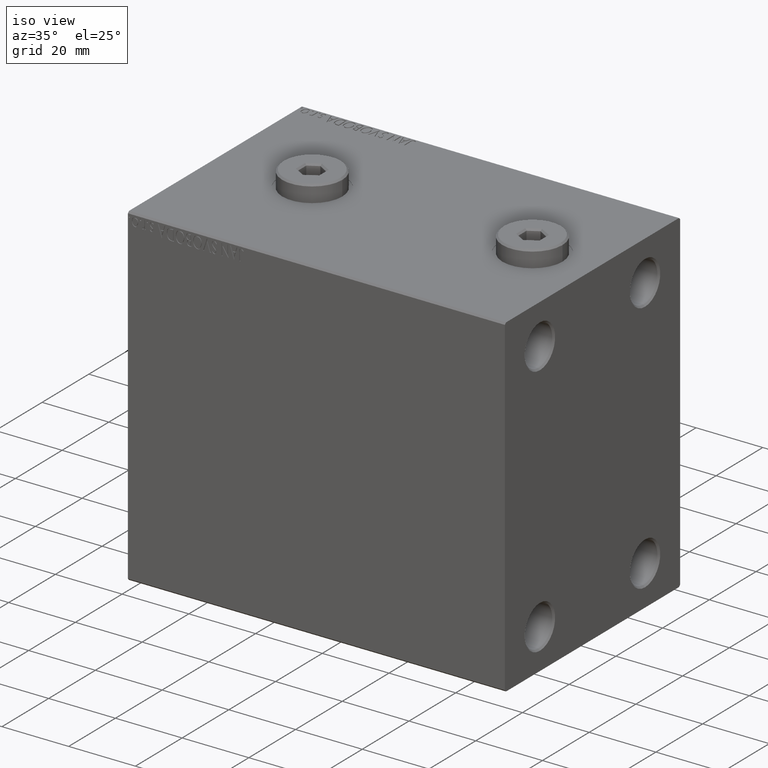
[diagram: clean part render]
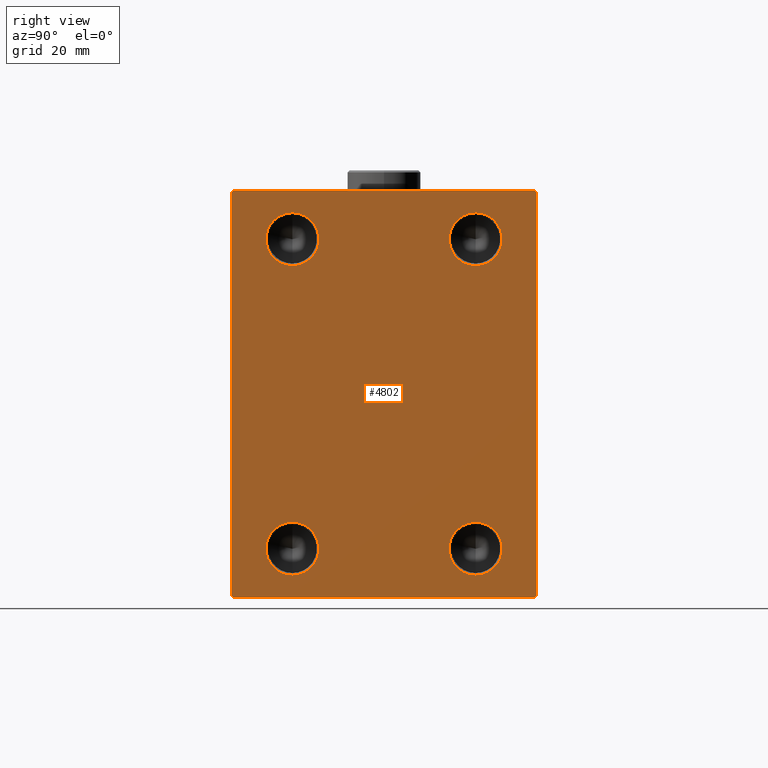
[diagram: tour spotlight — one face highlighted and labeled with its STEP entity id]
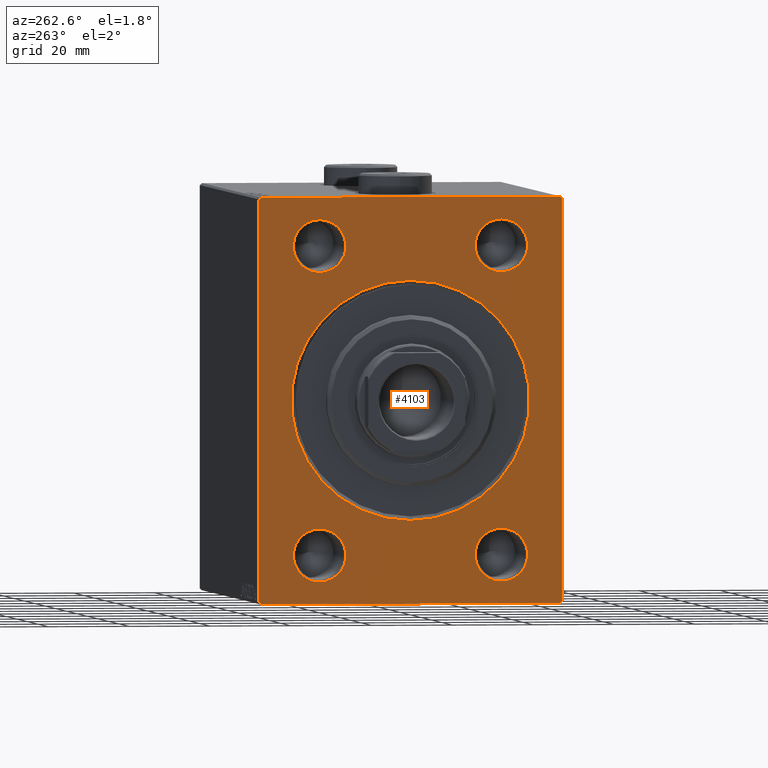
[diagram: tour spotlight — one face highlighted and labeled with its STEP entity id]
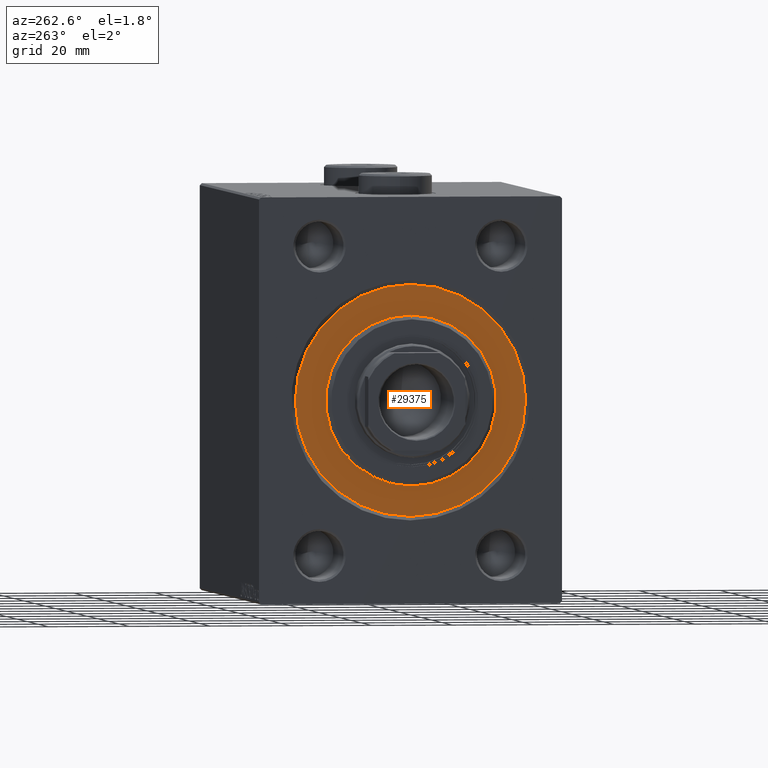
[diagram: tour spotlight — one face highlighted and labeled with its STEP entity id]
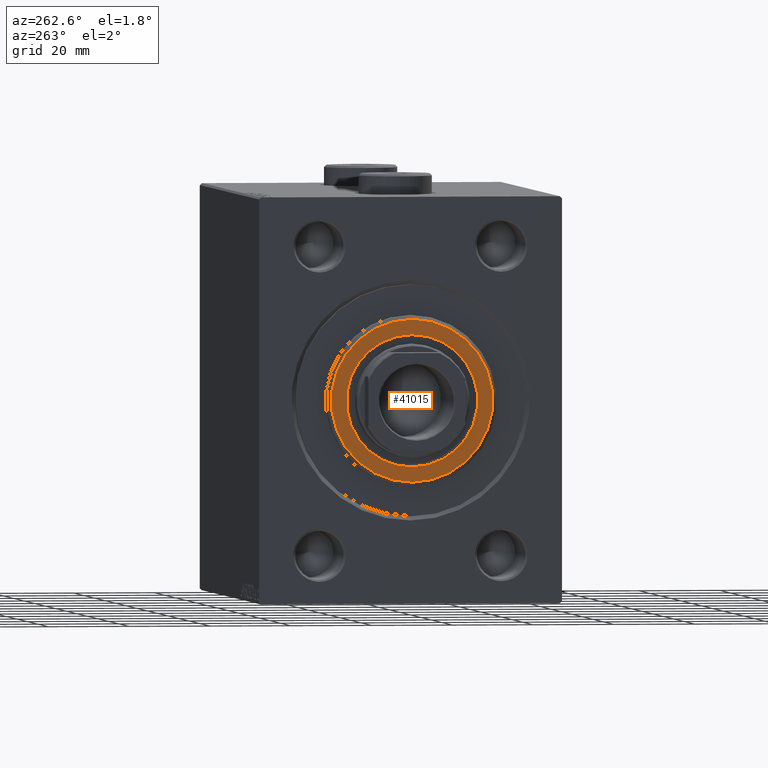
[diagram: tour spotlight — one face highlighted and labeled with its STEP entity id]
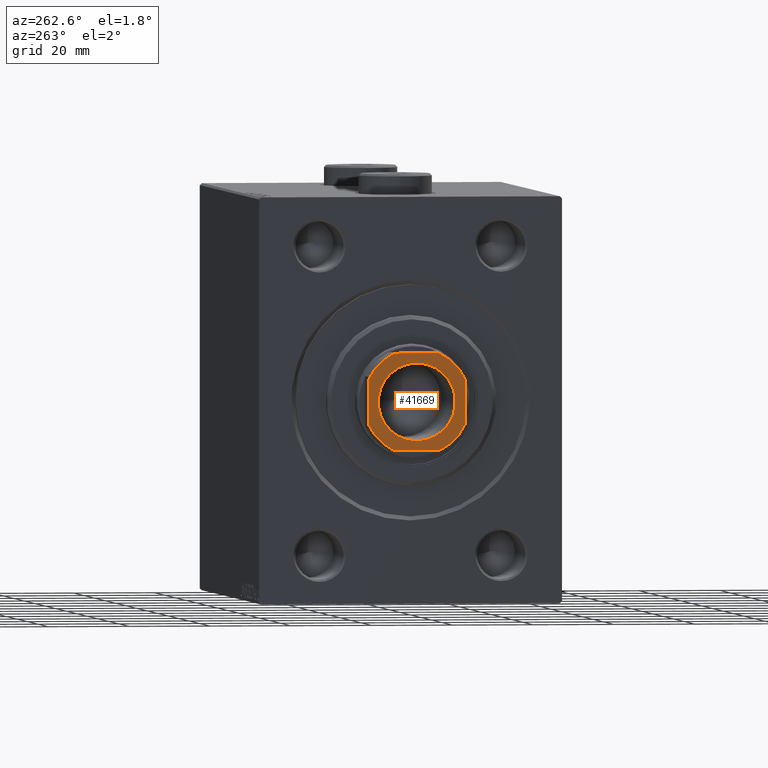
[diagram: tour spotlight — one face highlighted and labeled with its STEP entity id]
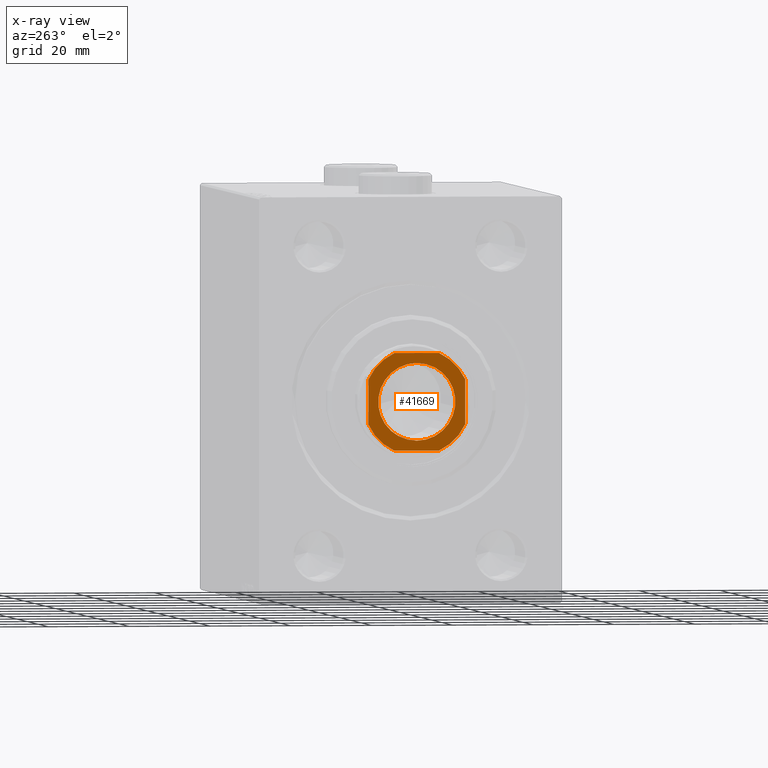
[diagram: x-ray of the same camera — body ghosted, this tour face saturated]
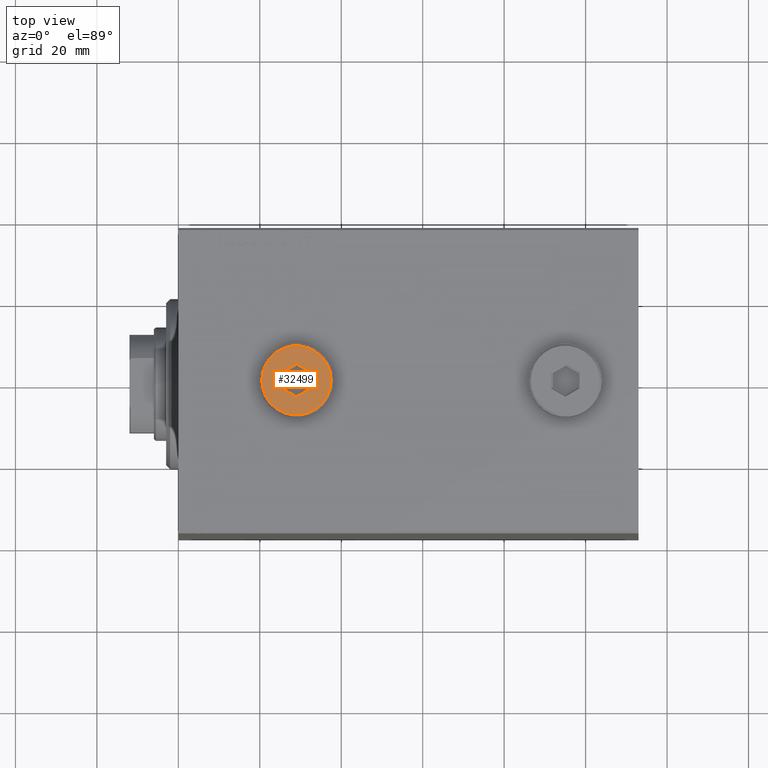
[diagram: tour spotlight — one face highlighted and labeled with its STEP entity id]
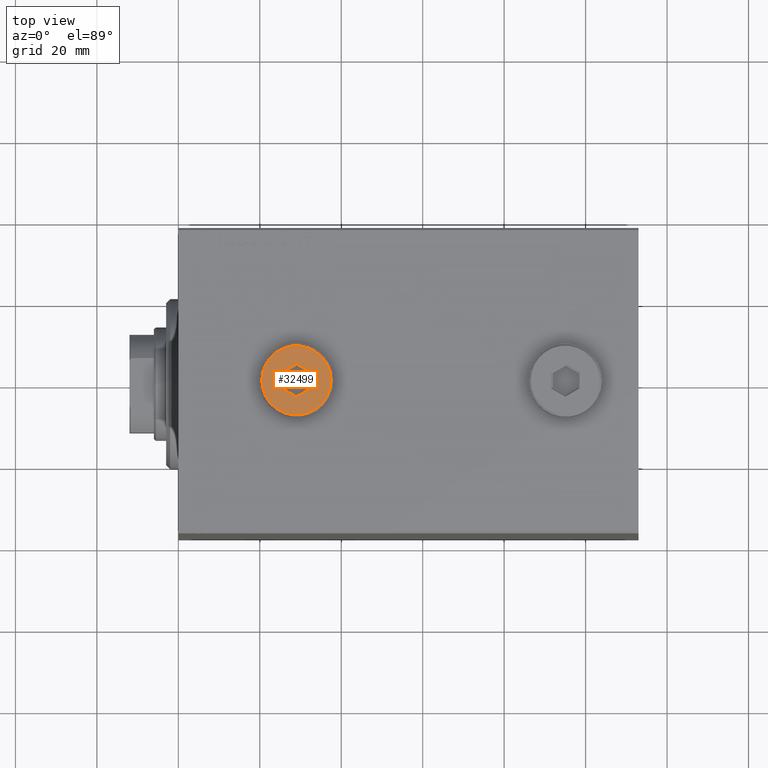
[diagram: tour spotlight — one face highlighted and labeled with its STEP entity id]
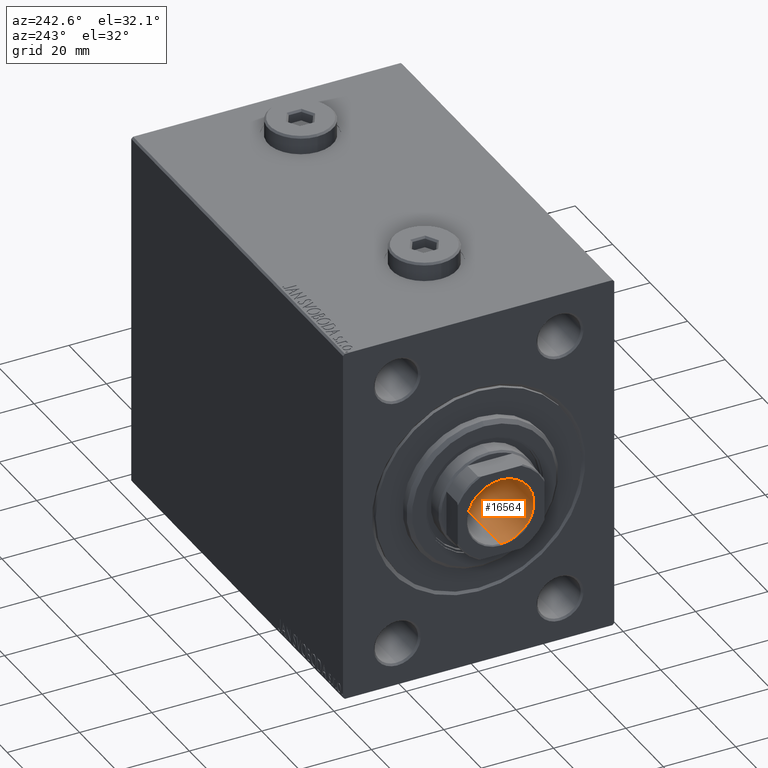
[diagram: tour spotlight — one face highlighted and labeled with its STEP entity id]
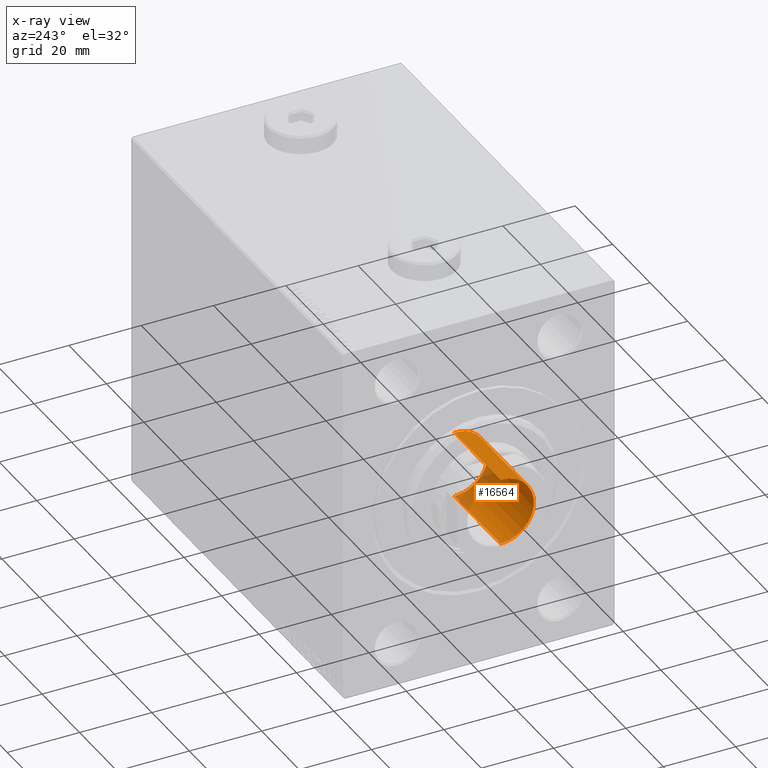
[diagram: x-ray of the same camera — body ghosted, this tour face saturated]
A machine part: a face-by-face anatomy tour. The part has 938 B-rep faces; the first image is the clean iso view, then the 8 largest visible faces are spotlighted one at a time (largest first), each with its STEP entity span.

Face 1 — right view, entity #4802. In plain terms, the highlighted planar face has unit normal (1, 0, 0).
Definition (entity closure, byte-faithful):
#610 = EDGE_CURVE ( 'NONE', #44098, #19004, #27504, .T. ) ;
#804 = EDGE_CURVE ( 'NONE', #18168, #32949, #7928, .T. ) ;
#882 = DIRECTION ( 'NONE',  ( 1.000000000000000000, -0.000000000000000000, -0.000000000000000000 ) ) ;
#1428 = CARTESIAN_POINT ( 'NONE',  ( 113.0000000000000000, 37.50000000000000711, -50.00000000000000000 ) ) ;
#1888 = ORIENTED_EDGE ( 'NONE', *, *, #10761, .F. ) ;
#2361 = CARTESIAN_POINT ( 'NONE',  ( 113.0000000000000000, -22.50000000000000000, 37.99999999999999289 ) ) ;
#2439 = VERTEX_POINT ( 'NONE', #24524 ) ;
#2568 = LINE ( 'NONE', #5804, #15909 ) ;
#2990 = ORIENTED_EDGE ( 'NONE', *, *, #18431, .T. ) ;
#3589 = ORIENTED_EDGE ( 'NONE', *, *, #610, .F. ) ;
#4212 = CARTESIAN_POINT ( 'NONE',  ( 113.0000000000000000, -37.50000000000000000, -49.49999999999995737 ) ) ;
#4410 = FACE_BOUND ( 'NONE', #21743, .T. ) ;
#4573 = DIRECTION ( 'NONE',  ( 0.000000000000000000, 0.000000000000000000, -1.000000000000000000 ) ) ;
#4651 = AXIS2_PLACEMENT_3D ( 'NONE', #2361, #43965, #37504 ) ;
#4802 = ADVANCED_FACE ( 'NONE', ( #4862, #11580, #4410, #32606, #43242 ), #7871, .T. ) ;
#4818 = AXIS2_PLACEMENT_3D ( 'NONE', #38025, #27173, #37343 ) ;
#4862 = FACE_BOUND ( 'NONE', #19630, .T. ) ;
#4947 = VECTOR ( 'NONE', #43080, 1000.000000000000000 ) ;
#4991 = ORIENTED_EDGE ( 'NONE', *, *, #27860, .F. ) ;
#5640 = AXIS2_PLACEMENT_3D ( 'NONE', #42034, #24240, #35769 ) ;
#5804 = CARTESIAN_POINT ( 'NONE',  ( 113.0000000000000000, -37.50000000000000000, 49.99999999999998579 ) ) ;
#5828 = EDGE_CURVE ( 'NONE', #39583, #29739, #21272, .T. ) ;
#6013 = CARTESIAN_POINT ( 'NONE',  ( 113.0000000000000000, -36.99999999999998579, -50.00000000000000000 ) ) ;
#6060 = ORIENTED_EDGE ( 'NONE', *, *, #38056, .T. ) ;
#6257 = CARTESIAN_POINT ( 'NONE',  ( 113.0000000000000000, -22.50000000000000000, 31.50000000000000000 ) ) ;
#6871 = CIRCLE ( 'NONE', #4651, 6.499999999999992006 ) ;
#7255 = CARTESIAN_POINT ( 'NONE',  ( 113.0000000000000000, 43.49999999999922551, 43.50000000000103739 ) ) ;
#7457 = DIRECTION ( 'NONE',  ( 0.000000000000000000, -1.000000000000000000, -2.775557561562891844E-16 ) ) ;
#7560 = CARTESIAN_POINT ( 'NONE',  ( 113.0000000000000000, -37.50000000000000000, -50.00000000000000000 ) ) ;
#7871 = PLANE ( 'NONE',  #19506 ) ;
#7928 = LINE ( 'NONE', #7255, #12020 ) ;
#9021 = CARTESIAN_POINT ( 'NONE',  ( 113.0000000000000000, 22.50000000000000000, 31.50000000000000000 ) ) ;
#9090 = EDGE_CURVE ( 'NONE', #32949, #36709, #45625, .T. ) ;
#9233 = DIRECTION ( 'NONE',  ( 0.000000000000000000, 0.000000000000000000, -1.000000000000000000 ) ) ;
#9762 = ORIENTED_EDGE ( 'NONE', *, *, #33925, .T. ) ;
#10733 = LINE ( 'NONE', #15097, #4947 ) ;
#10761 = EDGE_CURVE ( 'NONE', #19004, #44098, #13672, .T. ) ;
#11006 = ORIENTED_EDGE ( 'NONE', *, *, #27073, .T. ) ;
#11580 = FACE_BOUND ( 'NONE', #18486, .T. ) ;
#11639 = ORIENTED_EDGE ( 'NONE', *, *, #29126, .F. ) ;
#12020 = VECTOR ( 'NONE', #29196, 1000.000000000000000 ) ;
#12036 = EDGE_CURVE ( 'NONE', #36630, #20716, #43199, .T. ) ;
#12564 = CARTESIAN_POINT ( 'NONE',  ( 113.0000000000000000, 36.99999999999999289, 50.00000000000000711 ) ) ;
#13420 = EDGE_LOOP ( 'NONE', ( #44230, #13582, #9762, #16977, #11006, #6060, #2990, #18158 ) ) ;
#13441 = VERTEX_POINT ( 'NONE', #21545 ) ;
#13582 = ORIENTED_EDGE ( 'NONE', *, *, #37850, .T. ) ;
#13672 = CIRCLE ( 'NONE', #22619, 6.499999999999992006 ) ;
#13989 = EDGE_LOOP ( 'NONE', ( #3589, #1888 ) ) ;
#14110 = CARTESIAN_POINT ( 'NONE',  ( 113.0000000000000000, -37.50000000000000000, 49.49999999999998579 ) ) ;
#14811 = CARTESIAN_POINT ( 'NONE',  ( 113.0000000000000000, 0.000000000000000000, 0.000000000000000000 ) ) ;
#15033 = DIRECTION ( 'NONE',  ( 0.000000000000000000, 0.000000000000000000, -1.000000000000000000 ) ) ;
#15097 = CARTESIAN_POINT ( 'NONE',  ( 113.0000000000000000, -43.50000000000077449, 43.49999999999896261 ) ) ;
#15452 = VERTEX_POINT ( 'NONE', #14110 ) ;
#15886 = CARTESIAN_POINT ( 'NONE',  ( 113.0000000000000000, 22.50000000000000000, -38.00000000000000711 ) ) ;
#15909 = VECTOR ( 'NONE', #30769, 1000.000000000000000 ) ;
#16977 = ORIENTED_EDGE ( 'NONE', *, *, #5828, .T. ) ;
#17598 = VERTEX_POINT ( 'NONE', #9021 ) ;
#17957 = VECTOR ( 'NONE', #45264, 1000.000000000000000 ) ;
#18158 = ORIENTED_EDGE ( 'NONE', *, *, #804, .T. ) ;
#18168 = VERTEX_POINT ( 'NONE', #33840 ) ;
#18431 = EDGE_CURVE ( 'NONE', #23526, #18168, #33096, .T. ) ;
#18486 = EDGE_LOOP ( 'NONE', ( #11639, #4991 ) ) ;
#18603 = CARTESIAN_POINT ( 'NONE',  ( 113.0000000000000000, 37.50000000000000711, -49.50000000000000000 ) ) ;
#19004 = VERTEX_POINT ( 'NONE', #41505 ) ;
#19506 = AXIS2_PLACEMENT_3D ( 'NONE', #14811, #26362, #15033 ) ;
#19630 = EDGE_LOOP ( 'NONE', ( #43896, #19864 ) ) ;
#19864 = ORIENTED_EDGE ( 'NONE', *, *, #30490, .F. ) ;
#20128 = CARTESIAN_POINT ( 'NONE',  ( 113.0000000000000000, 22.50000000000000000, 37.99999999999999289 ) ) ;
#20716 = VERTEX_POINT ( 'NONE', #32424 ) ;
#21272 = LINE ( 'NONE', #42528, #36508 ) ;
#21545 = CARTESIAN_POINT ( 'NONE',  ( 113.0000000000000000, 37.00000000000001421, -50.00000000000000000 ) ) ;
#21743 = EDGE_LOOP ( 'NONE', ( #42682, #45045 ) ) ;
#22224 = DIRECTION ( 'NONE',  ( 0.000000000000000000, -1.387778780781445676E-16, 1.000000000000000000 ) ) ;
#22619 = AXIS2_PLACEMENT_3D ( 'NONE', #43989, #40523, #22957 ) ;
#22888 = DIRECTION ( 'NONE',  ( 1.000000000000000000, -0.000000000000000000, -0.000000000000000000 ) ) ;
#22957 = DIRECTION ( 'NONE',  ( 0.000000000000000000, 0.000000000000000000, -1.000000000000000000 ) ) ;
#23526 = VERTEX_POINT ( 'NONE', #18603 ) ;
#24240 = DIRECTION ( 'NONE',  ( 1.000000000000000000, -0.000000000000000000, -0.000000000000000000 ) ) ;
#24524 = CARTESIAN_POINT ( 'NONE',  ( 113.0000000000000000, -22.50000000000000000, 44.49999999999998579 ) ) ;
#26362 = DIRECTION ( 'NONE',  ( 1.000000000000000000, 0.000000000000000000, 0.000000000000000000 ) ) ;
#27073 = EDGE_CURVE ( 'NONE', #29739, #13441, #27939, .T. ) ;
#27125 = LINE ( 'NONE', #45136, #42611 ) ;
#27173 = DIRECTION ( 'NONE',  ( 1.000000000000000000, -0.000000000000000000, -0.000000000000000000 ) ) ;
#27504 = CIRCLE ( 'NONE', #36334, 6.499999999999992006 ) ;
#27860 = EDGE_CURVE ( 'NONE', #34759, #2439, #6871, .T. ) ;
#27939 = LINE ( 'NONE', #7560, #17957 ) ;
#28419 = DIRECTION ( 'NONE',  ( -0.000000000000000000, 0.7071067811865474617, -0.7071067811865474617 ) ) ;
#29126 = EDGE_CURVE ( 'NONE', #2439, #34759, #43129, .T. ) ;
#29196 = DIRECTION ( 'NONE',  ( -0.000000000000000000, -0.7071067811865622277, 0.7071067811865328068 ) ) ;
#29313 = CARTESIAN_POINT ( 'NONE',  ( 113.0000000000000000, -22.50000000000000000, -31.50000000000001421 ) ) ;
#29374 = VECTOR ( 'NONE', #22224, 1000.000000000000000 ) ;
#29546 = CARTESIAN_POINT ( 'NONE',  ( 113.0000000000000000, -22.50000000000000000, 37.99999999999999289 ) ) ;
#29739 = VERTEX_POINT ( 'NONE', #6013 ) ;
#29760 = DIRECTION ( 'NONE',  ( 0.000000000000000000, 0.000000000000000000, -1.000000000000000000 ) ) ;
#29946 = VECTOR ( 'NONE', #7457, 1000.000000000000000 ) ;
#30040 = CIRCLE ( 'NONE', #5640, 6.499999999999992006 ) ;
#30490 = EDGE_CURVE ( 'NONE', #17598, #36934, #44633, .T. ) ;
#30769 = DIRECTION ( 'NONE',  ( 0.000000000000000000, 0.000000000000000000, -1.000000000000000000 ) ) ;
#31116 = EDGE_CURVE ( 'NONE', #36934, #17598, #32078, .T. ) ;
#31495 = DIRECTION ( 'NONE',  ( -0.000000000000000000, 0.7071067811865426878, 0.7071067811865524577 ) ) ;
#32078 = CIRCLE ( 'NONE', #37991, 6.499999999999992006 ) ;
#32424 = CARTESIAN_POINT ( 'NONE',  ( 113.0000000000000000, -22.50000000000000000, -44.50000000000000000 ) ) ;
#32606 = FACE_BOUND ( 'NONE', #13989, .T. ) ;
#32949 = VERTEX_POINT ( 'NONE', #12564 ) ;
#33096 = LINE ( 'NONE', #1428, #29374 ) ;
#33840 = CARTESIAN_POINT ( 'NONE',  ( 113.0000000000000000, 37.49999999999999289, 49.50000000000002842 ) ) ;
#33925 = EDGE_CURVE ( 'NONE', #15452, #39583, #2568, .T. ) ;
#34759 = VERTEX_POINT ( 'NONE', #6257 ) ;
#35512 = CARTESIAN_POINT ( 'NONE',  ( 113.0000000000000000, 22.50000000000000000, 44.49999999999998579 ) ) ;
#35769 = DIRECTION ( 'NONE',  ( 0.000000000000000000, 0.000000000000000000, -1.000000000000000000 ) ) ;
#36334 = AXIS2_PLACEMENT_3D ( 'NONE', #15886, #44096, #29760 ) ;
#36508 = VECTOR ( 'NONE', #28419, 1000.000000000000114 ) ;
#36630 = VERTEX_POINT ( 'NONE', #29313 ) ;
#36709 = VERTEX_POINT ( 'NONE', #41085 ) ;
#36934 = VERTEX_POINT ( 'NONE', #35512 ) ;
#37343 = DIRECTION ( 'NONE',  ( 0.000000000000000000, 0.000000000000000000, -1.000000000000000000 ) ) ;
#37457 = CARTESIAN_POINT ( 'NONE',  ( 113.0000000000000000, 22.50000000000000000, 37.99999999999999289 ) ) ;
#37483 = DIRECTION ( 'NONE',  ( 1.000000000000000000, -0.000000000000000000, -0.000000000000000000 ) ) ;
#37504 = DIRECTION ( 'NONE',  ( 0.000000000000000000, 0.000000000000000000, -1.000000000000000000 ) ) ;
#37850 = EDGE_CURVE ( 'NONE', #36709, #15452, #10733, .T. ) ;
#37991 = AXIS2_PLACEMENT_3D ( 'NONE', #37457, #22888, #9233 ) ;
#38025 = CARTESIAN_POINT ( 'NONE',  ( 113.0000000000000000, -22.50000000000000000, -38.00000000000000711 ) ) ;
#38056 = EDGE_CURVE ( 'NONE', #13441, #23526, #27125, .T. ) ;
#39583 = VERTEX_POINT ( 'NONE', #4212 ) ;
#40186 = EDGE_CURVE ( 'NONE', #20716, #36630, #30040, .T. ) ;
#40523 = DIRECTION ( 'NONE',  ( 1.000000000000000000, -0.000000000000000000, -0.000000000000000000 ) ) ;
#40703 = DIRECTION ( 'NONE',  ( 0.000000000000000000, 0.000000000000000000, -1.000000000000000000 ) ) ;
#41085 = CARTESIAN_POINT ( 'NONE',  ( 113.0000000000000000, -37.00000000000002132, 49.99999999999998579 ) ) ;
#41505 = CARTESIAN_POINT ( 'NONE',  ( 113.0000000000000000, 22.50000000000000000, -44.50000000000000000 ) ) ;
#41931 = CARTESIAN_POINT ( 'NONE',  ( 113.0000000000000000, 37.49999999999999289, 50.00000000000000711 ) ) ;
#42034 = CARTESIAN_POINT ( 'NONE',  ( 113.0000000000000000, -22.50000000000000000, -38.00000000000000711 ) ) ;
#42528 = CARTESIAN_POINT ( 'NONE',  ( 113.0000000000000000, -43.49999999999999289, -43.49999999999999289 ) ) ;
#42611 = VECTOR ( 'NONE', #31495, 1000.000000000000000 ) ;
#42682 = ORIENTED_EDGE ( 'NONE', *, *, #12036, .F. ) ;
#42948 = CARTESIAN_POINT ( 'NONE',  ( 113.0000000000000000, 22.50000000000000000, -31.50000000000001421 ) ) ;
#43080 = DIRECTION ( 'NONE',  ( 0.000000000000000000, -0.7071067811865328068, -0.7071067811865622277 ) ) ;
#43129 = CIRCLE ( 'NONE', #44595, 6.499999999999992006 ) ;
#43199 = CIRCLE ( 'NONE', #4818, 6.499999999999992006 ) ;
#43242 = FACE_OUTER_BOUND ( 'NONE', #13420, .T. ) ;
#43887 = AXIS2_PLACEMENT_3D ( 'NONE', #20128, #37483, #40703 ) ;
#43896 = ORIENTED_EDGE ( 'NONE', *, *, #31116, .F. ) ;
#43965 = DIRECTION ( 'NONE',  ( 1.000000000000000000, -0.000000000000000000, -0.000000000000000000 ) ) ;
#43989 = CARTESIAN_POINT ( 'NONE',  ( 113.0000000000000000, 22.50000000000000000, -38.00000000000000711 ) ) ;
#44096 = DIRECTION ( 'NONE',  ( 1.000000000000000000, -0.000000000000000000, -0.000000000000000000 ) ) ;
#44098 = VERTEX_POINT ( 'NONE', #42948 ) ;
#44230 = ORIENTED_EDGE ( 'NONE', *, *, #9090, .T. ) ;
#44595 = AXIS2_PLACEMENT_3D ( 'NONE', #29546, #882, #4573 ) ;
#44633 = CIRCLE ( 'NONE', #43887, 6.499999999999992006 ) ;
#45045 = ORIENTED_EDGE ( 'NONE', *, *, #40186, .F. ) ;
#45136 = CARTESIAN_POINT ( 'NONE',  ( 113.0000000000000000, 43.50000000000026290, -43.49999999999966604 ) ) ;
#45264 = DIRECTION ( 'NONE',  ( 0.000000000000000000, 1.000000000000000000, 0.000000000000000000 ) ) ;
#45625 = LINE ( 'NONE', #41931, #29946 ) ;

Face 2 — auxiliary view, entity #4103. In plain terms, the highlighted planar face has unit normal (1, 0, 0).
Definition (entity closure, byte-faithful):
#154 = CARTESIAN_POINT ( 'NONE',  ( 0.000000000000000000, -37.50000000000000000, -50.00000000000000000 ) ) ;
#375 = AXIS2_PLACEMENT_3D ( 'NONE', #42352, #18063, #10913 ) ;
#438 = CARTESIAN_POINT ( 'NONE',  ( 0.000000000000000000, 37.00000000000001421, -50.00000000000000000 ) ) ;
#734 = VERTEX_POINT ( 'NONE', #28287 ) ;
#1067 = DIRECTION ( 'NONE',  ( -0.000000000000000000, -0.7071067811865474617, 0.7071067811865474617 ) ) ;
#1239 = DIRECTION ( 'NONE',  ( 1.000000000000000000, 0.000000000000000000, 0.000000000000000000 ) ) ;
#1433 = CARTESIAN_POINT ( 'NONE',  ( 0.000000000000000000, 0.000000000000000000, 0.000000000000000000 ) ) ;
#2006 = CARTESIAN_POINT ( 'NONE',  ( 0.000000000000000000, -22.50000000000000000, -31.50000000000001421 ) ) ;
#2017 = LINE ( 'NONE', #12868, #41343 ) ;
#2099 = CIRCLE ( 'NONE', #38982, 6.499999999999992006 ) ;
#2688 = DIRECTION ( 'NONE',  ( 0.000000000000000000, -1.000000000000000000, -2.775557561562891844E-16 ) ) ;
#2821 = ORIENTED_EDGE ( 'NONE', *, *, #26378, .F. ) ;
#3501 = FACE_BOUND ( 'NONE', #11953, .T. ) ;
#3610 = ORIENTED_EDGE ( 'NONE', *, *, #44555, .T. ) ;
#3804 = DIRECTION ( 'NONE',  ( 0.000000000000000000, 0.000000000000000000, -1.000000000000000000 ) ) ;
#4103 = ADVANCED_FACE ( 'NONE', ( #18046, #3501, #21307, #14577, #21079, #38412 ), #17607, .F. ) ;
#4309 = LINE ( 'NONE', #26025, #22483 ) ;
#4896 = ORIENTED_EDGE ( 'NONE', *, *, #37930, .T. ) ;
#5297 = VERTEX_POINT ( 'NONE', #44741 ) ;
#5489 = EDGE_CURVE ( 'NONE', #9700, #36632, #28080, .T. ) ;
#5724 = EDGE_CURVE ( 'NONE', #30504, #43333, #17787, .T. ) ;
#5802 = CARTESIAN_POINT ( 'NONE',  ( 0.000000000000000000, -37.50000000000000000, 49.49999999999998579 ) ) ;
#6136 = EDGE_CURVE ( 'NONE', #45571, #43333, #4309, .T. ) ;
#6475 = CARTESIAN_POINT ( 'NONE',  ( 0.000000000000000000, 0.000000000000000000, 0.000000000000000000 ) ) ;
#6816 = EDGE_LOOP ( 'NONE', ( #3610, #42918 ) ) ;
#6847 = ORIENTED_EDGE ( 'NONE', *, *, #10122, .T. ) ;
#7130 = DIRECTION ( 'NONE',  ( 0.000000000000000000, 0.000000000000000000, -1.000000000000000000 ) ) ;
#8154 = ORIENTED_EDGE ( 'NONE', *, *, #28106, .F. ) ;
#8293 = VERTEX_POINT ( 'NONE', #17684 ) ;
#8387 = DIRECTION ( 'NONE',  ( 1.000000000000000000, 0.000000000000000000, 0.000000000000000000 ) ) ;
#8419 = CARTESIAN_POINT ( 'NONE',  ( 0.000000000000000000, 22.50000000000000000, 44.49999999999998579 ) ) ;
#8549 = DIRECTION ( 'NONE',  ( 1.000000000000000000, 0.000000000000000000, 0.000000000000000000 ) ) ;
#8652 = CARTESIAN_POINT ( 'NONE',  ( 0.000000000000000000, -22.50000000000000000, 31.50000000000000000 ) ) ;
#9171 = ORIENTED_EDGE ( 'NONE', *, *, #20373, .T. ) ;
#9216 = EDGE_CURVE ( 'NONE', #33940, #41711, #19651, .T. ) ;
#9321 = AXIS2_PLACEMENT_3D ( 'NONE', #39994, #8549, #28908 ) ;
#9330 = EDGE_CURVE ( 'NONE', #43350, #31633, #27766, .T. ) ;
#9693 = CARTESIAN_POINT ( 'NONE',  ( 0.000000000000000000, -22.50000000000000000, -44.50000000000000000 ) ) ;
#9700 = VERTEX_POINT ( 'NONE', #31076 ) ;
#10122 = EDGE_CURVE ( 'NONE', #41711, #33940, #28491, .T. ) ;
#10505 = DIRECTION ( 'NONE',  ( 0.000000000000000000, -0.7071067811865426878, -0.7071067811865524577 ) ) ;
#10597 = CARTESIAN_POINT ( 'NONE',  ( 0.000000000000000000, -22.50000000000000000, 37.99999999999999289 ) ) ;
#10913 = DIRECTION ( 'NONE',  ( 0.000000000000000000, 0.000000000000000000, -1.000000000000000000 ) ) ;
#11004 = LINE ( 'NONE', #154, #18709 ) ;
#11038 = EDGE_CURVE ( 'NONE', #28836, #40442, #25476, .T. ) ;
#11113 = CARTESIAN_POINT ( 'NONE',  ( 0.000000000000000000, 0.000000000000000000, 0.000000000000000000 ) ) ;
#11855 = DIRECTION ( 'NONE',  ( 0.000000000000000000, 0.000000000000000000, -1.000000000000000000 ) ) ;
#11953 = EDGE_LOOP ( 'NONE', ( #4896, #26990 ) ) ;
#12408 = AXIS2_PLACEMENT_3D ( 'NONE', #36836, #1239, #15784 ) ;
#12543 = CARTESIAN_POINT ( 'NONE',  ( 0.000000000000000000, -22.50000000000000000, 37.99999999999999289 ) ) ;
#12560 = DIRECTION ( 'NONE',  ( 0.000000000000000000, 0.000000000000000000, -1.000000000000000000 ) ) ;
#12749 = VECTOR ( 'NONE', #34583, 1000.000000000000000 ) ;
#12852 = EDGE_CURVE ( 'NONE', #43527, #17278, #21110, .T. ) ;
#12868 = CARTESIAN_POINT ( 'NONE',  ( 0.000000000000000000, -37.50000000000000000, 49.49999999999998579 ) ) ;
#13554 = ORIENTED_EDGE ( 'NONE', *, *, #5489, .T. ) ;
#13766 = CARTESIAN_POINT ( 'NONE',  ( 0.000000000000000000, 22.50000000000000000, 37.99999999999999289 ) ) ;
#13921 = EDGE_LOOP ( 'NONE', ( #35794, #36261 ) ) ;
#14088 = DIRECTION ( 'NONE',  ( 1.000000000000000000, 0.000000000000000000, 0.000000000000000000 ) ) ;
#14115 = ORIENTED_EDGE ( 'NONE', *, *, #35374, .F. ) ;
#14208 = CARTESIAN_POINT ( 'NONE',  ( 0.000000000000000000, 37.50000000000000711, -50.00000000000000000 ) ) ;
#14577 = FACE_BOUND ( 'NONE', #6816, .T. ) ;
#15114 = VECTOR ( 'NONE', #35366, 1000.000000000000000 ) ;
#15522 = DIRECTION ( 'NONE',  ( 1.000000000000000000, 0.000000000000000000, 0.000000000000000000 ) ) ;
#15784 = DIRECTION ( 'NONE',  ( 0.000000000000000000, 0.000000000000000000, -1.000000000000000000 ) ) ;
#16439 = VECTOR ( 'NONE', #20423, 1000.000000000000000 ) ;
#17167 = CARTESIAN_POINT ( 'NONE',  ( 0.000000000000000000, 0.000000000000000000, 29.50000000000001421 ) ) ;
#17278 = VERTEX_POINT ( 'NONE', #17167 ) ;
#17607 = PLANE ( 'NONE',  #38687 ) ;
#17684 = CARTESIAN_POINT ( 'NONE',  ( 0.000000000000000000, 37.49999999999999289, 49.50000000000002842 ) ) ;
#17787 = LINE ( 'NONE', #39056, #15114 ) ;
#18046 = FACE_BOUND ( 'NONE', #43027, .T. ) ;
#18063 = DIRECTION ( 'NONE',  ( 1.000000000000000000, 0.000000000000000000, 0.000000000000000000 ) ) ;
#18218 = EDGE_LOOP ( 'NONE', ( #32311, #9171, #14115, #35278, #2821, #13554, #8154, #31586 ) ) ;
#18709 = VECTOR ( 'NONE', #41997, 1000.000000000000000 ) ;
#19120 = EDGE_CURVE ( 'NONE', #5297, #23622, #2099, .T. ) ;
#19651 = CIRCLE ( 'NONE', #21149, 6.499999999999992006 ) ;
#20191 = LINE ( 'NONE', #23890, #16439 ) ;
#20250 = LINE ( 'NONE', #34354, #28521 ) ;
#20373 = EDGE_CURVE ( 'NONE', #30504, #734, #2017, .T. ) ;
#20423 = DIRECTION ( 'NONE',  ( -0.000000000000000000, 0.7071067811865622277, -0.7071067811865328068 ) ) ;
#20622 = DIRECTION ( 'NONE',  ( 0.000000000000000000, 0.000000000000000000, -1.000000000000000000 ) ) ;
#21079 = FACE_BOUND ( 'NONE', #31399, .T. ) ;
#21110 = CIRCLE ( 'NONE', #25546, 29.50000000000001421 ) ;
#21149 = AXIS2_PLACEMENT_3D ( 'NONE', #42947, #32090, #21465 ) ;
#21307 = FACE_BOUND ( 'NONE', #13921, .T. ) ;
#21465 = DIRECTION ( 'NONE',  ( 0.000000000000000000, 0.000000000000000000, -1.000000000000000000 ) ) ;
#21645 = EDGE_CURVE ( 'NONE', #31633, #43350, #45248, .T. ) ;
#22483 = VECTOR ( 'NONE', #1067, 1000.000000000000114 ) ;
#22608 = AXIS2_PLACEMENT_3D ( 'NONE', #1433, #15522, #40487 ) ;
#22994 = ORIENTED_EDGE ( 'NONE', *, *, #9216, .T. ) ;
#23241 = VECTOR ( 'NONE', #10505, 1000.000000000000000 ) ;
#23622 = VERTEX_POINT ( 'NONE', #8419 ) ;
#23890 = CARTESIAN_POINT ( 'NONE',  ( 0.000000000000000000, 36.99999999999999289, 50.00000000000000711 ) ) ;
#24177 = LINE ( 'NONE', #14208, #12749 ) ;
#25322 = AXIS2_PLACEMENT_3D ( 'NONE', #12543, #26641, #11855 ) ;
#25476 = CIRCLE ( 'NONE', #375, 6.499999999999992006 ) ;
#25546 = AXIS2_PLACEMENT_3D ( 'NONE', #6475, #14088, #31878 ) ;
#25693 = EDGE_CURVE ( 'NONE', #42945, #8293, #20191, .T. ) ;
#25779 = CARTESIAN_POINT ( 'NONE',  ( 0.000000000000000000, 22.50000000000000000, -31.50000000000001421 ) ) ;
#26025 = CARTESIAN_POINT ( 'NONE',  ( 0.000000000000000000, -36.99999999999998579, -50.00000000000000000 ) ) ;
#26378 = EDGE_CURVE ( 'NONE', #9700, #8293, #24177, .T. ) ;
#26641 = DIRECTION ( 'NONE',  ( 1.000000000000000000, 0.000000000000000000, 0.000000000000000000 ) ) ;
#26990 = ORIENTED_EDGE ( 'NONE', *, *, #11038, .T. ) ;
#27766 = CIRCLE ( 'NONE', #41062, 6.499999999999992006 ) ;
#28080 = LINE ( 'NONE', #34571, #23241 ) ;
#28106 = EDGE_CURVE ( 'NONE', #45571, #36632, #11004, .T. ) ;
#28287 = CARTESIAN_POINT ( 'NONE',  ( 0.000000000000000000, -37.00000000000002132, 49.99999999999998579 ) ) ;
#28491 = CIRCLE ( 'NONE', #9321, 6.499999999999992006 ) ;
#28521 = VECTOR ( 'NONE', #2688, 1000.000000000000000 ) ;
#28836 = VERTEX_POINT ( 'NONE', #9693 ) ;
#28908 = DIRECTION ( 'NONE',  ( 0.000000000000000000, 0.000000000000000000, -1.000000000000000000 ) ) ;
#29292 = CARTESIAN_POINT ( 'NONE',  ( 0.000000000000000000, 36.99999999999999289, 50.00000000000000711 ) ) ;
#30136 = CARTESIAN_POINT ( 'NONE',  ( 0.000000000000000000, -22.50000000000000000, -38.00000000000000711 ) ) ;
#30504 = VERTEX_POINT ( 'NONE', #5802 ) ;
#31076 = CARTESIAN_POINT ( 'NONE',  ( 0.000000000000000000, 37.50000000000000711, -49.50000000000000000 ) ) ;
#31122 = ORIENTED_EDGE ( 'NONE', *, *, #39848, .T. ) ;
#31399 = EDGE_LOOP ( 'NONE', ( #6847, #22994 ) ) ;
#31569 = DIRECTION ( 'NONE',  ( 1.000000000000000000, 0.000000000000000000, 0.000000000000000000 ) ) ;
#31586 = ORIENTED_EDGE ( 'NONE', *, *, #6136, .T. ) ;
#31633 = VERTEX_POINT ( 'NONE', #32714 ) ;
#31878 = DIRECTION ( 'NONE',  ( 0.000000000000000000, 0.000000000000000000, -1.000000000000000000 ) ) ;
#32090 = DIRECTION ( 'NONE',  ( 1.000000000000000000, 0.000000000000000000, 0.000000000000000000 ) ) ;
#32311 = ORIENTED_EDGE ( 'NONE', *, *, #5724, .F. ) ;
#32714 = CARTESIAN_POINT ( 'NONE',  ( 0.000000000000000000, -22.50000000000000000, 44.49999999999998579 ) ) ;
#33940 = VERTEX_POINT ( 'NONE', #45308 ) ;
#34354 = CARTESIAN_POINT ( 'NONE',  ( 0.000000000000000000, 37.49999999999999289, 50.00000000000000711 ) ) ;
#34571 = CARTESIAN_POINT ( 'NONE',  ( 0.000000000000000000, 37.50000000000000711, -49.50000000000000000 ) ) ;
#34583 = DIRECTION ( 'NONE',  ( 0.000000000000000000, -1.387778780781445676E-16, 1.000000000000000000 ) ) ;
#35278 = ORIENTED_EDGE ( 'NONE', *, *, #25693, .T. ) ;
#35366 = DIRECTION ( 'NONE',  ( 0.000000000000000000, 0.000000000000000000, -1.000000000000000000 ) ) ;
#35374 = EDGE_CURVE ( 'NONE', #42945, #734, #20250, .T. ) ;
#35794 = ORIENTED_EDGE ( 'NONE', *, *, #21645, .T. ) ;
#36074 = ORIENTED_EDGE ( 'NONE', *, *, #12852, .T. ) ;
#36261 = ORIENTED_EDGE ( 'NONE', *, *, #9330, .T. ) ;
#36632 = VERTEX_POINT ( 'NONE', #438 ) ;
#36706 = AXIS2_PLACEMENT_3D ( 'NONE', #30136, #8387, #12560 ) ;
#36836 = CARTESIAN_POINT ( 'NONE',  ( 0.000000000000000000, 22.50000000000000000, 37.99999999999999289 ) ) ;
#37930 = EDGE_CURVE ( 'NONE', #40442, #28836, #38914, .T. ) ;
#38187 = DIRECTION ( 'NONE',  ( 1.000000000000000000, 0.000000000000000000, 0.000000000000000000 ) ) ;
#38213 = CARTESIAN_POINT ( 'NONE',  ( 0.000000000000000000, -36.99999999999998579, -50.00000000000000000 ) ) ;
#38412 = FACE_OUTER_BOUND ( 'NONE', #18218, .T. ) ;
#38687 = AXIS2_PLACEMENT_3D ( 'NONE', #11113, #38187, #20622 ) ;
#38802 = DIRECTION ( 'NONE',  ( 1.000000000000000000, 0.000000000000000000, 0.000000000000000000 ) ) ;
#38914 = CIRCLE ( 'NONE', #36706, 6.499999999999992006 ) ;
#38982 = AXIS2_PLACEMENT_3D ( 'NONE', #13766, #31569, #3804 ) ;
#39056 = CARTESIAN_POINT ( 'NONE',  ( 0.000000000000000000, -37.50000000000000000, 49.99999999999998579 ) ) ;
#39848 = EDGE_CURVE ( 'NONE', #17278, #43527, #45508, .T. ) ;
#39994 = CARTESIAN_POINT ( 'NONE',  ( 0.000000000000000000, 22.50000000000000000, -38.00000000000000711 ) ) ;
#40442 = VERTEX_POINT ( 'NONE', #2006 ) ;
#40487 = DIRECTION ( 'NONE',  ( 0.000000000000000000, 0.000000000000000000, -1.000000000000000000 ) ) ;
#40555 = CARTESIAN_POINT ( 'NONE',  ( 0.000000000000000000, -37.50000000000000000, -49.49999999999995737 ) ) ;
#41062 = AXIS2_PLACEMENT_3D ( 'NONE', #10597, #38802, #7130 ) ;
#41073 = DIRECTION ( 'NONE',  ( -0.000000000000000000, 0.7071067811865328068, 0.7071067811865622277 ) ) ;
#41343 = VECTOR ( 'NONE', #41073, 1000.000000000000000 ) ;
#41711 = VERTEX_POINT ( 'NONE', #25779 ) ;
#41997 = DIRECTION ( 'NONE',  ( 0.000000000000000000, 1.000000000000000000, 0.000000000000000000 ) ) ;
#42352 = CARTESIAN_POINT ( 'NONE',  ( 0.000000000000000000, -22.50000000000000000, -38.00000000000000711 ) ) ;
#42918 = ORIENTED_EDGE ( 'NONE', *, *, #19120, .T. ) ;
#42945 = VERTEX_POINT ( 'NONE', #29292 ) ;
#42947 = CARTESIAN_POINT ( 'NONE',  ( 0.000000000000000000, 22.50000000000000000, -38.00000000000000711 ) ) ;
#43027 = EDGE_LOOP ( 'NONE', ( #31122, #36074 ) ) ;
#43281 = CARTESIAN_POINT ( 'NONE',  ( 0.000000000000000000, 3.612708057484693970E-15, -29.50000000000001421 ) ) ;
#43333 = VERTEX_POINT ( 'NONE', #40555 ) ;
#43350 = VERTEX_POINT ( 'NONE', #8652 ) ;
#43387 = CIRCLE ( 'NONE', #12408, 6.499999999999992006 ) ;
#43527 = VERTEX_POINT ( 'NONE', #43281 ) ;
#44555 = EDGE_CURVE ( 'NONE', #23622, #5297, #43387, .T. ) ;
#44741 = CARTESIAN_POINT ( 'NONE',  ( 0.000000000000000000, 22.50000000000000000, 31.50000000000000000 ) ) ;
#45248 = CIRCLE ( 'NONE', #25322, 6.499999999999992006 ) ;
#45308 = CARTESIAN_POINT ( 'NONE',  ( 0.000000000000000000, 22.50000000000000000, -44.50000000000000000 ) ) ;
#45508 = CIRCLE ( 'NONE', #22608, 29.50000000000001421 ) ;
#45571 = VERTEX_POINT ( 'NONE', #38213 ) ;

Face 3 — auxiliary view, entity #29375. In plain terms, the highlighted planar face has unit normal (1, -0, -0).
Definition (entity closure, byte-faithful):
#2059 = AXIS2_PLACEMENT_3D ( 'NONE', #20023, #26722, #8919 ) ;
#2632 = EDGE_CURVE ( 'NONE', #11268, #18361, #33473, .T. ) ;
#4274 = DIRECTION ( 'NONE',  ( 0.000000000000000000, 0.000000000000000000, -1.000000000000000000 ) ) ;
#4930 = CARTESIAN_POINT ( 'NONE',  ( 0.000000000000000000, 0.000000000000000000, 0.000000000000000000 ) ) ;
#6788 = EDGE_LOOP ( 'NONE', ( #18187, #10604 ) ) ;
#6837 = CIRCLE ( 'NONE', #16442, 28.50000000000000000 ) ;
#6940 = DIRECTION ( 'NONE',  ( 1.000000000000000000, -0.000000000000000000, 0.000000000000000000 ) ) ;
#6963 = DIRECTION ( 'NONE',  ( -1.000000000000000000, 0.000000000000000000, 0.000000000000000000 ) ) ;
#7088 = ORIENTED_EDGE ( 'NONE', *, *, #21811, .F. ) ;
#7639 = DIRECTION ( 'NONE',  ( 0.000000000000000000, 0.000000000000000000, 1.000000000000000000 ) ) ;
#8919 = DIRECTION ( 'NONE',  ( 0.000000000000000000, 0.000000000000000000, 1.000000000000000000 ) ) ;
#10436 = CARTESIAN_POINT ( 'NONE',  ( 0.000000000000000000, 0.000000000000000000, 0.000000000000000000 ) ) ;
#10604 = ORIENTED_EDGE ( 'NONE', *, *, #44479, .F. ) ;
#11268 = VERTEX_POINT ( 'NONE', #27736 ) ;
#11322 = AXIS2_PLACEMENT_3D ( 'NONE', #25311, #43103, #4274 ) ;
#13973 = ORIENTED_EDGE ( 'NONE', *, *, #42320, .F. ) ;
#15805 = AXIS2_PLACEMENT_3D ( 'NONE', #4930, #33137, #29662 ) ;
#16442 = AXIS2_PLACEMENT_3D ( 'NONE', #10436, #6963, #7639 ) ;
#18187 = ORIENTED_EDGE ( 'NONE', *, *, #2632, .F. ) ;
#18361 = VERTEX_POINT ( 'NONE', #32177 ) ;
#18799 = FACE_OUTER_BOUND ( 'NONE', #18833, .T. ) ;
#18833 = EDGE_LOOP ( 'NONE', ( #7088, #13973 ) ) ;
#20023 = CARTESIAN_POINT ( 'NONE',  ( 0.000000000000000000, 0.000000000000000000, 0.000000000000000000 ) ) ;
#20826 = DIRECTION ( 'NONE',  ( 0.000000000000000000, 0.000000000000000000, -1.000000000000000000 ) ) ;
#21811 = EDGE_CURVE ( 'NONE', #29367, #23283, #6837, .T. ) ;
#23283 = VERTEX_POINT ( 'NONE', #25377 ) ;
#25311 = CARTESIAN_POINT ( 'NONE',  ( 0.000000000000000000, 0.000000000000000000, 0.000000000000000000 ) ) ;
#25377 = CARTESIAN_POINT ( 'NONE',  ( 0.000000000000000000, 3.490243377569956456E-15, 28.50000000000000000 ) ) ;
#25968 = FACE_BOUND ( 'NONE', #6788, .T. ) ;
#26722 = DIRECTION ( 'NONE',  ( -1.000000000000000000, 0.000000000000000000, 0.000000000000000000 ) ) ;
#27736 = CARTESIAN_POINT ( 'NONE',  ( 0.000000000000000000, 0.000000000000000000, 21.00000000000000000 ) ) ;
#29367 = VERTEX_POINT ( 'NONE', #36369 ) ;
#29375 = ADVANCED_FACE ( 'NONE', ( #25968, #18799 ), #32901, .F. ) ;
#29662 = DIRECTION ( 'NONE',  ( 0.000000000000000000, 0.000000000000000000, 1.000000000000000000 ) ) ;
#31220 = CARTESIAN_POINT ( 'NONE',  ( 0.000000000000000000, 0.000000000000000000, 0.000000000000000000 ) ) ;
#32177 = CARTESIAN_POINT ( 'NONE',  ( 0.000000000000000000, 2.571758278209441661E-15, -21.00000000000000000 ) ) ;
#32901 = PLANE ( 'NONE',  #15805 ) ;
#33137 = DIRECTION ( 'NONE',  ( -1.000000000000000000, 0.000000000000000000, 0.000000000000000000 ) ) ;
#33473 = CIRCLE ( 'NONE', #11322, 21.00000000000000000 ) ;
#33839 = AXIS2_PLACEMENT_3D ( 'NONE', #31220, #6940, #20826 ) ;
#36369 = CARTESIAN_POINT ( 'NONE',  ( 0.000000000000000000, 0.000000000000000000, -28.50000000000000000 ) ) ;
#38258 = CIRCLE ( 'NONE', #33839, 21.00000000000000000 ) ;
#42320 = EDGE_CURVE ( 'NONE', #23283, #29367, #44859, .T. ) ;
#43103 = DIRECTION ( 'NONE',  ( 1.000000000000000000, -0.000000000000000000, 0.000000000000000000 ) ) ;
#44479 = EDGE_CURVE ( 'NONE', #18361, #11268, #38258, .T. ) ;
#44859 = CIRCLE ( 'NONE', #2059, 28.50000000000000000 ) ;

Face 4 — auxiliary view, entity #41015. In plain terms, the highlighted planar face has unit normal (-1, 0, 0).
Definition (entity closure, byte-faithful):
#1225 = AXIS2_PLACEMENT_3D ( 'NONE', #33741, #30048, #36283 ) ;
#4160 = CIRCLE ( 'NONE', #43261, 16.25000000000000000 ) ;
#6630 = VERTEX_POINT ( 'NONE', #22433 ) ;
#8202 = CARTESIAN_POINT ( 'NONE',  ( 3.000000000000000000, 0.000000000000000000, 0.000000000000000000 ) ) ;
#8280 = CIRCLE ( 'NONE', #13478, 19.99999999999999645 ) ;
#9464 = CARTESIAN_POINT ( 'NONE',  ( 3.000000000000000000, 0.000000000000000000, 19.99999999999999645 ) ) ;
#9664 = DIRECTION ( 'NONE',  ( 1.000000000000000000, -0.000000000000000000, 0.000000000000000000 ) ) ;
#10768 = ORIENTED_EDGE ( 'NONE', *, *, #38750, .F. ) ;
#12820 = VERTEX_POINT ( 'NONE', #45301 ) ;
#13478 = AXIS2_PLACEMENT_3D ( 'NONE', #8202, #24263, #34890 ) ;
#13836 = CIRCLE ( 'NONE', #25644, 16.25000000000000000 ) ;
#20079 = DIRECTION ( 'NONE',  ( 0.000000000000000000, 0.000000000000000000, -1.000000000000000000 ) ) ;
#22433 = CARTESIAN_POINT ( 'NONE',  ( 3.000000000000000000, 1.990051048614449313E-15, 16.25000000000000000 ) ) ;
#23302 = CARTESIAN_POINT ( 'NONE',  ( 3.000000000000000000, 0.000000000000000000, 0.000000000000000000 ) ) ;
#23441 = DIRECTION ( 'NONE',  ( 0.000000000000000000, 0.000000000000000000, -1.000000000000000000 ) ) ;
#24185 = ORIENTED_EDGE ( 'NONE', *, *, #24408, .T. ) ;
#24236 = CARTESIAN_POINT ( 'NONE',  ( 3.000000000000000000, 0.000000000000000000, 0.000000000000000000 ) ) ;
#24263 = DIRECTION ( 'NONE',  ( 1.000000000000000000, -0.000000000000000000, 0.000000000000000000 ) ) ;
#24408 = EDGE_CURVE ( 'NONE', #43930, #12820, #8280, .T. ) ;
#24646 = ORIENTED_EDGE ( 'NONE', *, *, #35034, .T. ) ;
#25543 = AXIS2_PLACEMENT_3D ( 'NONE', #24236, #9664, #20079 ) ;
#25644 = AXIS2_PLACEMENT_3D ( 'NONE', #23302, #33948, #37417 ) ;
#25890 = PLANE ( 'NONE',  #1225 ) ;
#27210 = VERTEX_POINT ( 'NONE', #28153 ) ;
#27576 = DIRECTION ( 'NONE',  ( 1.000000000000000000, 0.000000000000000000, 0.000000000000000000 ) ) ;
#28153 = CARTESIAN_POINT ( 'NONE',  ( 3.000000000000000000, 0.000000000000000000, -16.25000000000000000 ) ) ;
#30048 = DIRECTION ( 'NONE',  ( 1.000000000000000000, -0.000000000000000000, 0.000000000000000000 ) ) ;
#32945 = EDGE_LOOP ( 'NONE', ( #24185, #24646 ) ) ;
#33741 = CARTESIAN_POINT ( 'NONE',  ( 3.000000000000000000, 0.000000000000000000, 0.000000000000000000 ) ) ;
#33948 = DIRECTION ( 'NONE',  ( 1.000000000000000000, 0.000000000000000000, 0.000000000000000000 ) ) ;
#34890 = DIRECTION ( 'NONE',  ( 0.000000000000000000, 0.000000000000000000, -1.000000000000000000 ) ) ;
#35034 = EDGE_CURVE ( 'NONE', #12820, #43930, #41788, .T. ) ;
#36283 = DIRECTION ( 'NONE',  ( 0.000000000000000000, 0.000000000000000000, -1.000000000000000000 ) ) ;
#36516 = FACE_OUTER_BOUND ( 'NONE', #32945, .T. ) ;
#37417 = DIRECTION ( 'NONE',  ( 0.000000000000000000, 0.000000000000000000, -1.000000000000000000 ) ) ;
#37761 = CARTESIAN_POINT ( 'NONE',  ( 3.000000000000000000, 0.000000000000000000, 0.000000000000000000 ) ) ;
#38626 = EDGE_LOOP ( 'NONE', ( #45379, #10768 ) ) ;
#38750 = EDGE_CURVE ( 'NONE', #6630, #27210, #13836, .T. ) ;
#39512 = EDGE_CURVE ( 'NONE', #27210, #6630, #4160, .T. ) ;
#40664 = FACE_BOUND ( 'NONE', #38626, .T. ) ;
#41015 = ADVANCED_FACE ( 'NONE', ( #36516, #40664 ), #25890, .T. ) ;
#41788 = CIRCLE ( 'NONE', #25543, 19.99999999999999645 ) ;
#43261 = AXIS2_PLACEMENT_3D ( 'NONE', #37761, #27576, #23441 ) ;
#43930 = VERTEX_POINT ( 'NONE', #9464 ) ;
#45301 = CARTESIAN_POINT ( 'NONE',  ( 3.000000000000000000, 2.510525938252074087E-15, -19.99999999999999645 ) ) ;
#45379 = ORIENTED_EDGE ( 'NONE', *, *, #39512, .F. ) ;

Face 5 — auxiliary view, entity #41669. An x-ray twin of the same camera follows (body ghosted, this face saturated) — the face is partly hidden behind the body. In plain terms, the highlighted planar face has unit normal (-1, 0, 0).
Definition (entity closure, byte-faithful):
#23 = CARTESIAN_POINT ( 'NONE',  ( 0.000000000000000000, 0.000000000000000000, 111.0000000000000142 ) ) ;
#43 = ORIENTED_EDGE ( 'NONE', *, *, #26966, .T. ) ;
#243 = DIRECTION ( 'NONE',  ( 1.000000000000000000, 0.000000000000000000, 0.000000000000000000 ) ) ;
#599 = DIRECTION ( 'NONE',  ( 1.000000000000000000, 0.000000000000000000, 0.000000000000000000 ) ) ;
#1072 = CARTESIAN_POINT ( 'NONE',  ( 5.499090833946865153, -12.00000000000000355, 111.0000000000000142 ) ) ;
#1601 = DIRECTION ( 'NONE',  ( 1.000000000000000000, 0.000000000000000000, 0.000000000000000000 ) ) ;
#1721 = CARTESIAN_POINT ( 'NONE',  ( 0.000000000000000000, 0.000000000000000000, 111.0000000000000142 ) ) ;
#3905 = AXIS2_PLACEMENT_3D ( 'NONE', #1721, #8186, #32694 ) ;
#4048 = PLANE ( 'NONE',  #15279 ) ;
#6042 = ORIENTED_EDGE ( 'NONE', *, *, #18642, .T. ) ;
#6568 = VERTEX_POINT ( 'NONE', #41650 ) ;
#6725 = VERTEX_POINT ( 'NONE', #27050 ) ;
#7945 = CIRCLE ( 'NONE', #22746, 9.549999999999975842 ) ;
#8186 = DIRECTION ( 'NONE',  ( -0.000000000000000000, 0.000000000000000000, 1.000000000000000000 ) ) ;
#8207 = CARTESIAN_POINT ( 'NONE',  ( 11.99999999999999645, 11.99999999999999645, 111.0000000000000142 ) ) ;
#8692 = EDGE_CURVE ( 'NONE', #6568, #25691, #20531, .T. ) ;
#9802 = ORIENTED_EDGE ( 'NONE', *, *, #31678, .T. ) ;
#10121 = CARTESIAN_POINT ( 'NONE',  ( -12.00000000000000355, 11.99999999999999645, 111.0000000000000142 ) ) ;
#11200 = VERTEX_POINT ( 'NONE', #33533 ) ;
#11208 = FACE_BOUND ( 'NONE', #43853, .T. ) ;
#11236 = CARTESIAN_POINT ( 'NONE',  ( -5.499090833946828738, -12.00000000000000355, 111.0000000000000142 ) ) ;
#11999 = CARTESIAN_POINT ( 'NONE',  ( 9.549999999999975842, 0.000000000000000000, 111.0000000000000142 ) ) ;
#12027 = CARTESIAN_POINT ( 'NONE',  ( -5.499090833946853607, 11.99999999999999645, 111.0000000000000142 ) ) ;
#12053 = AXIS2_PLACEMENT_3D ( 'NONE', #26102, #29578, #1601 ) ;
#12393 = CARTESIAN_POINT ( 'NONE',  ( 11.99999999999999645, 5.499090833946878476, 111.0000000000000142 ) ) ;
#12814 = VECTOR ( 'NONE', #24836, 1000.000000000000000 ) ;
#13160 = CARTESIAN_POINT ( 'NONE',  ( -12.00000000000000355, 11.99999999999999645, 111.0000000000000142 ) ) ;
#13258 = VERTEX_POINT ( 'NONE', #11236 ) ;
#13335 = VERTEX_POINT ( 'NONE', #12393 ) ;
#14007 = FACE_OUTER_BOUND ( 'NONE', #26166, .T. ) ;
#14133 = VERTEX_POINT ( 'NONE', #1072 ) ;
#14181 = LINE ( 'NONE', #17435, #12814 ) ;
#15279 = AXIS2_PLACEMENT_3D ( 'NONE', #28105, #21407, #599 ) ;
#16481 = CIRCLE ( 'NONE', #12053, 13.19999999999993179 ) ;
#16854 = DIRECTION ( 'NONE',  ( -1.000000000000000000, -0.000000000000000000, -0.000000000000000000 ) ) ;
#16921 = ORIENTED_EDGE ( 'NONE', *, *, #34848, .T. ) ;
#17057 = DIRECTION ( 'NONE',  ( 2.168404344971008868E-16, -1.000000000000000000, 0.000000000000000000 ) ) ;
#17435 = CARTESIAN_POINT ( 'NONE',  ( -11.99999999999999822, -12.00000000000000355, 111.0000000000000142 ) ) ;
#18479 = CARTESIAN_POINT ( 'NONE',  ( 0.000000000000000000, 0.000000000000000000, 111.0000000000000142 ) ) ;
#18642 = EDGE_CURVE ( 'NONE', #25691, #13258, #27138, .T. ) ;
#19014 = AXIS2_PLACEMENT_3D ( 'NONE', #23, #24511, #39510 ) ;
#19532 = LINE ( 'NONE', #8207, #24737 ) ;
#20086 = LINE ( 'NONE', #13160, #32696 ) ;
#20531 = LINE ( 'NONE', #10121, #25522 ) ;
#21407 = DIRECTION ( 'NONE',  ( -0.000000000000000000, 0.000000000000000000, 1.000000000000000000 ) ) ;
#21902 = VERTEX_POINT ( 'NONE', #12027 ) ;
#21921 = CIRCLE ( 'NONE', #33737, 13.19999999999994422 ) ;
#22028 = DIRECTION ( 'NONE',  ( 0.000000000000000000, -0.000000000000000000, -1.000000000000000000 ) ) ;
#22676 = DIRECTION ( 'NONE',  ( -0.000000000000000000, 0.000000000000000000, 1.000000000000000000 ) ) ;
#22746 = AXIS2_PLACEMENT_3D ( 'NONE', #39587, #22028, #25049 ) ;
#22780 = EDGE_CURVE ( 'NONE', #13335, #6725, #23845, .T. ) ;
#23664 = CARTESIAN_POINT ( 'NONE',  ( -12.00000000000000000, -5.499090833946834067, 111.0000000000000142 ) ) ;
#23845 = CIRCLE ( 'NONE', #3905, 13.19999999999994422 ) ;
#24511 = DIRECTION ( 'NONE',  ( -0.000000000000000000, 0.000000000000000000, 1.000000000000000000 ) ) ;
#24737 = VECTOR ( 'NONE', #36655, 1000.000000000000000 ) ;
#24836 = DIRECTION ( 'NONE',  ( 1.000000000000000000, 0.000000000000000000, 0.000000000000000000 ) ) ;
#25049 = DIRECTION ( 'NONE',  ( 1.000000000000000000, 0.000000000000000000, 0.000000000000000000 ) ) ;
#25522 = VECTOR ( 'NONE', #17057, 1000.000000000000000 ) ;
#25691 = VERTEX_POINT ( 'NONE', #23664 ) ;
#26102 = CARTESIAN_POINT ( 'NONE',  ( 0.000000000000000000, 0.000000000000000000, 111.0000000000000142 ) ) ;
#26166 = EDGE_LOOP ( 'NONE', ( #9802, #28097, #43, #32847, #37002, #6042, #28823, #42998 ) ) ;
#26808 = EDGE_CURVE ( 'NONE', #21902, #6568, #16481, .T. ) ;
#26966 = EDGE_CURVE ( 'NONE', #6725, #21902, #20086, .T. ) ;
#27050 = CARTESIAN_POINT ( 'NONE',  ( 5.499090833946882029, 11.99999999999999645, 111.0000000000000142 ) ) ;
#27138 = CIRCLE ( 'NONE', #19014, 13.19999999999992824 ) ;
#27733 = DIRECTION ( 'NONE',  ( 1.000000000000000000, 0.000000000000000000, 0.000000000000000000 ) ) ;
#28097 = ORIENTED_EDGE ( 'NONE', *, *, #22780, .T. ) ;
#28105 = CARTESIAN_POINT ( 'NONE',  ( 0.000000000000000000, 0.000000000000000000, 111.0000000000000142 ) ) ;
#28470 = EDGE_CURVE ( 'NONE', #13258, #14133, #14181, .T. ) ;
#28823 = ORIENTED_EDGE ( 'NONE', *, *, #28470, .T. ) ;
#29578 = DIRECTION ( 'NONE',  ( -0.000000000000000000, 0.000000000000000000, 1.000000000000000000 ) ) ;
#31408 = ORIENTED_EDGE ( 'NONE', *, *, #43564, .T. ) ;
#31678 = EDGE_CURVE ( 'NONE', #11200, #13335, #19532, .T. ) ;
#32610 = CARTESIAN_POINT ( 'NONE',  ( 0.000000000000000000, 0.000000000000000000, 111.0000000000000142 ) ) ;
#32694 = DIRECTION ( 'NONE',  ( 1.000000000000000000, 0.000000000000000000, 0.000000000000000000 ) ) ;
#32696 = VECTOR ( 'NONE', #16854, 1000.000000000000000 ) ;
#32847 = ORIENTED_EDGE ( 'NONE', *, *, #26808, .T. ) ;
#33533 = CARTESIAN_POINT ( 'NONE',  ( 12.00000000000000000, -5.499090833946874923, 111.0000000000000142 ) ) ;
#33562 = VERTEX_POINT ( 'NONE', #34975 ) ;
#33737 = AXIS2_PLACEMENT_3D ( 'NONE', #32610, #22676, #27733 ) ;
#34848 = EDGE_CURVE ( 'NONE', #33562, #41981, #38093, .T. ) ;
#34975 = CARTESIAN_POINT ( 'NONE',  ( -9.549999999999975842, 1.169537693185719205E-15, 111.0000000000000142 ) ) ;
#35595 = DIRECTION ( 'NONE',  ( 0.000000000000000000, -0.000000000000000000, -1.000000000000000000 ) ) ;
#36655 = DIRECTION ( 'NONE',  ( -2.168404344971008868E-16, 1.000000000000000000, -0.000000000000000000 ) ) ;
#37002 = ORIENTED_EDGE ( 'NONE', *, *, #8692, .T. ) ;
#37511 = EDGE_CURVE ( 'NONE', #14133, #11200, #21921, .T. ) ;
#38093 = CIRCLE ( 'NONE', #45479, 9.549999999999975842 ) ;
#39510 = DIRECTION ( 'NONE',  ( 1.000000000000000000, 0.000000000000000000, 0.000000000000000000 ) ) ;
#39587 = CARTESIAN_POINT ( 'NONE',  ( 0.000000000000000000, 0.000000000000000000, 111.0000000000000142 ) ) ;
#41650 = CARTESIAN_POINT ( 'NONE',  ( -12.00000000000000178, 5.499090833946842949, 111.0000000000000142 ) ) ;
#41669 = ADVANCED_FACE ( 'NONE', ( #11208, #14007 ), #4048, .T. ) ;
#41981 = VERTEX_POINT ( 'NONE', #11999 ) ;
#42998 = ORIENTED_EDGE ( 'NONE', *, *, #37511, .T. ) ;
#43564 = EDGE_CURVE ( 'NONE', #41981, #33562, #7945, .T. ) ;
#43853 = EDGE_LOOP ( 'NONE', ( #31408, #16921 ) ) ;
#45479 = AXIS2_PLACEMENT_3D ( 'NONE', #18479, #35595, #243 ) ;

Face 6 — top view, entity #32499. In plain terms, the highlighted planar face has unit normal (0, 0, 1).
Definition (entity closure, byte-faithful):
#542 = VECTOR ( 'NONE', #10500, 1000.000000000000000 ) ;
#762 = CARTESIAN_POINT ( 'NONE',  ( 3.250000000000003109, 2.165063509461103042, 5.000000000000000000 ) ) ;
#1061 = CARTESIAN_POINT ( 'NONE',  ( 0.000000000000000000, 0.000000000000000000, 5.000000000000000000 ) ) ;
#1414 = ORIENTED_EDGE ( 'NONE', *, *, #37800, .T. ) ;
#1614 = ORIENTED_EDGE ( 'NONE', *, *, #13791, .T. ) ;
#1996 = CIRCLE ( 'NONE', #26340, 8.500000000000010658 ) ;
#2428 = ORIENTED_EDGE ( 'NONE', *, *, #21487, .T. ) ;
#4740 = VERTEX_POINT ( 'NONE', #39779 ) ;
#5187 = LINE ( 'NONE', #29693, #12531 ) ;
#6093 = VERTEX_POINT ( 'NONE', #22327 ) ;
#7532 = DIRECTION ( 'NONE',  ( 1.000000000000000000, 0.000000000000000000, -0.000000000000000000 ) ) ;
#7691 = LINE ( 'NONE', #32206, #18728 ) ;
#8817 = DIRECTION ( 'NONE',  ( 1.000000000000000000, 0.000000000000000000, 0.000000000000000000 ) ) ;
#9068 = DIRECTION ( 'NONE',  ( -0.8660254037844385966, 0.4999999999999999445, 0.000000000000000000 ) ) ;
#10100 = EDGE_CURVE ( 'NONE', #6093, #15244, #18876, .T. ) ;
#10181 = LINE ( 'NONE', #10403, #27804 ) ;
#10403 = CARTESIAN_POINT ( 'NONE',  ( -0.2500000000000027756, 3.897114317029978459, 5.000000000000000000 ) ) ;
#10500 = DIRECTION ( 'NONE',  ( 0.000000000000000000, 1.000000000000000000, 0.000000000000000000 ) ) ;
#10883 = EDGE_CURVE ( 'NONE', #22367, #26889, #26886, .T. ) ;
#12531 = VECTOR ( 'NONE', #22767, 1000.000000000000000 ) ;
#13791 = EDGE_CURVE ( 'NONE', #39982, #36146, #10181, .T. ) ;
#13890 = CARTESIAN_POINT ( 'NONE',  ( -3.500000000000006661, 2.020725942163692945, 5.000000000000000000 ) ) ;
#14026 = CARTESIAN_POINT ( 'NONE',  ( -1.006139216460143630E-15, -4.041451884327387667, 5.000000000000000000 ) ) ;
#14845 = DIRECTION ( 'NONE',  ( 0.8660254037844387076, -0.4999999999999998890, 0.000000000000000000 ) ) ;
#15028 = DIRECTION ( 'NONE',  ( 0.000000000000000000, 0.000000000000000000, 1.000000000000000000 ) ) ;
#15244 = VERTEX_POINT ( 'NONE', #34023 ) ;
#15287 = EDGE_CURVE ( 'NONE', #15244, #6093, #1996, .T. ) ;
#15496 = DIRECTION ( 'NONE',  ( 1.000000000000000000, 0.000000000000000000, 0.000000000000000000 ) ) ;
#16254 = CARTESIAN_POINT ( 'NONE',  ( -3.250000000000003109, -2.165063509461102598, 5.000000000000000000 ) ) ;
#18728 = VECTOR ( 'NONE', #45223, 1000.000000000000000 ) ;
#18876 = CIRCLE ( 'NONE', #29244, 8.500000000000010658 ) ;
#20554 = EDGE_CURVE ( 'NONE', #4740, #20665, #5187, .T. ) ;
#20665 = VERTEX_POINT ( 'NONE', #26921 ) ;
#21487 = EDGE_CURVE ( 'NONE', #20665, #22367, #7691, .T. ) ;
#21560 = LINE ( 'NONE', #762, #44523 ) ;
#22327 = CARTESIAN_POINT ( 'NONE',  ( 8.500000000000010658, 1.071565949253934716E-15, 5.000000000000000000 ) ) ;
#22367 = VERTEX_POINT ( 'NONE', #14026 ) ;
#22767 = DIRECTION ( 'NONE',  ( 0.000000000000000000, -1.000000000000000000, 0.000000000000000000 ) ) ;
#22966 = EDGE_CURVE ( 'NONE', #36146, #4740, #21560, .T. ) ;
#23559 = CARTESIAN_POINT ( 'NONE',  ( -3.500000000000006661, -2.020725942163694278, 5.000000000000000000 ) ) ;
#24285 = DIRECTION ( 'NONE',  ( 0.8660254037844387076, 0.4999999999999998335, 0.000000000000000000 ) ) ;
#25126 = FACE_BOUND ( 'NONE', #36877, .T. ) ;
#25801 = FACE_OUTER_BOUND ( 'NONE', #34222, .T. ) ;
#25989 = ORIENTED_EDGE ( 'NONE', *, *, #10883, .T. ) ;
#26340 = AXIS2_PLACEMENT_3D ( 'NONE', #34481, #30551, #8817 ) ;
#26886 = LINE ( 'NONE', #16254, #41721 ) ;
#26889 = VERTEX_POINT ( 'NONE', #23559 ) ;
#26921 = CARTESIAN_POINT ( 'NONE',  ( 3.500000000000006661, -2.020725942163693833, 5.000000000000000000 ) ) ;
#27804 = VECTOR ( 'NONE', #24285, 1000.000000000000000 ) ;
#29244 = AXIS2_PLACEMENT_3D ( 'NONE', #40222, #15028, #15496 ) ;
#29693 = CARTESIAN_POINT ( 'NONE',  ( 3.500000000000006661, -1.732050807568878303, 5.000000000000000000 ) ) ;
#29824 = ORIENTED_EDGE ( 'NONE', *, *, #20554, .T. ) ;
#30551 = DIRECTION ( 'NONE',  ( 0.000000000000000000, 0.000000000000000000, 1.000000000000000000 ) ) ;
#30637 = LINE ( 'NONE', #42180, #542 ) ;
#32115 = AXIS2_PLACEMENT_3D ( 'NONE', #1061, #42463, #7532 ) ;
#32206 = CARTESIAN_POINT ( 'NONE',  ( 0.2500000000000027756, -3.897114317029979347, 5.000000000000000000 ) ) ;
#32499 = ADVANCED_FACE ( 'NONE', ( #25126, #25801 ), #43132, .T. ) ;
#32751 = CARTESIAN_POINT ( 'NONE',  ( 1.590596867181068292E-15, 4.041451884327386779, 5.000000000000000000 ) ) ;
#34023 = CARTESIAN_POINT ( 'NONE',  ( -8.500000000000010658, 0.000000000000000000, 5.000000000000000000 ) ) ;
#34222 = EDGE_LOOP ( 'NONE', ( #44316, #45002 ) ) ;
#34376 = ORIENTED_EDGE ( 'NONE', *, *, #22966, .T. ) ;
#34481 = CARTESIAN_POINT ( 'NONE',  ( 0.000000000000000000, 0.000000000000000000, 5.000000000000000000 ) ) ;
#36146 = VERTEX_POINT ( 'NONE', #32751 ) ;
#36877 = EDGE_LOOP ( 'NONE', ( #1414, #1614, #34376, #29824, #2428, #25989 ) ) ;
#37800 = EDGE_CURVE ( 'NONE', #26889, #39982, #30637, .T. ) ;
#39779 = CARTESIAN_POINT ( 'NONE',  ( 3.500000000000006661, 2.020725942163694722, 5.000000000000000000 ) ) ;
#39982 = VERTEX_POINT ( 'NONE', #13890 ) ;
#40222 = CARTESIAN_POINT ( 'NONE',  ( 0.000000000000000000, 0.000000000000000000, 5.000000000000000000 ) ) ;
#41721 = VECTOR ( 'NONE', #9068, 1000.000000000000114 ) ;
#42180 = CARTESIAN_POINT ( 'NONE',  ( -3.500000000000006661, 1.732050807568878081, 5.000000000000000000 ) ) ;
#42463 = DIRECTION ( 'NONE',  ( 0.000000000000000000, 0.000000000000000000, 1.000000000000000000 ) ) ;
#43132 = PLANE ( 'NONE',  #32115 ) ;
#44316 = ORIENTED_EDGE ( 'NONE', *, *, #15287, .T. ) ;
#44523 = VECTOR ( 'NONE', #14845, 1000.000000000000000 ) ;
#45002 = ORIENTED_EDGE ( 'NONE', *, *, #10100, .T. ) ;
#45223 = DIRECTION ( 'NONE',  ( -0.8660254037844387076, -0.4999999999999998890, 0.000000000000000000 ) ) ;

Face 7 — top view, entity #32499. In plain terms, the highlighted planar face has unit normal (0, 0, 1).
Definition (entity closure, byte-faithful):
#542 = VECTOR ( 'NONE', #10500, 1000.000000000000000 ) ;
#762 = CARTESIAN_POINT ( 'NONE',  ( 3.250000000000003109, 2.165063509461103042, 5.000000000000000000 ) ) ;
#1061 = CARTESIAN_POINT ( 'NONE',  ( 0.000000000000000000, 0.000000000000000000, 5.000000000000000000 ) ) ;
#1414 = ORIENTED_EDGE ( 'NONE', *, *, #37800, .T. ) ;
#1614 = ORIENTED_EDGE ( 'NONE', *, *, #13791, .T. ) ;
#1996 = CIRCLE ( 'NONE', #26340, 8.500000000000010658 ) ;
#2428 = ORIENTED_EDGE ( 'NONE', *, *, #21487, .T. ) ;
#4740 = VERTEX_POINT ( 'NONE', #39779 ) ;
#5187 = LINE ( 'NONE', #29693, #12531 ) ;
#6093 = VERTEX_POINT ( 'NONE', #22327 ) ;
#7532 = DIRECTION ( 'NONE',  ( 1.000000000000000000, 0.000000000000000000, -0.000000000000000000 ) ) ;
#7691 = LINE ( 'NONE', #32206, #18728 ) ;
#8817 = DIRECTION ( 'NONE',  ( 1.000000000000000000, 0.000000000000000000, 0.000000000000000000 ) ) ;
#9068 = DIRECTION ( 'NONE',  ( -0.8660254037844385966, 0.4999999999999999445, 0.000000000000000000 ) ) ;
#10100 = EDGE_CURVE ( 'NONE', #6093, #15244, #18876, .T. ) ;
#10181 = LINE ( 'NONE', #10403, #27804 ) ;
#10403 = CARTESIAN_POINT ( 'NONE',  ( -0.2500000000000027756, 3.897114317029978459, 5.000000000000000000 ) ) ;
#10500 = DIRECTION ( 'NONE',  ( 0.000000000000000000, 1.000000000000000000, 0.000000000000000000 ) ) ;
#10883 = EDGE_CURVE ( 'NONE', #22367, #26889, #26886, .T. ) ;
#12531 = VECTOR ( 'NONE', #22767, 1000.000000000000000 ) ;
#13791 = EDGE_CURVE ( 'NONE', #39982, #36146, #10181, .T. ) ;
#13890 = CARTESIAN_POINT ( 'NONE',  ( -3.500000000000006661, 2.020725942163692945, 5.000000000000000000 ) ) ;
#14026 = CARTESIAN_POINT ( 'NONE',  ( -1.006139216460143630E-15, -4.041451884327387667, 5.000000000000000000 ) ) ;
#14845 = DIRECTION ( 'NONE',  ( 0.8660254037844387076, -0.4999999999999998890, 0.000000000000000000 ) ) ;
#15028 = DIRECTION ( 'NONE',  ( 0.000000000000000000, 0.000000000000000000, 1.000000000000000000 ) ) ;
#15244 = VERTEX_POINT ( 'NONE', #34023 ) ;
#15287 = EDGE_CURVE ( 'NONE', #15244, #6093, #1996, .T. ) ;
#15496 = DIRECTION ( 'NONE',  ( 1.000000000000000000, 0.000000000000000000, 0.000000000000000000 ) ) ;
#16254 = CARTESIAN_POINT ( 'NONE',  ( -3.250000000000003109, -2.165063509461102598, 5.000000000000000000 ) ) ;
#18728 = VECTOR ( 'NONE', #45223, 1000.000000000000000 ) ;
#18876 = CIRCLE ( 'NONE', #29244, 8.500000000000010658 ) ;
#20554 = EDGE_CURVE ( 'NONE', #4740, #20665, #5187, .T. ) ;
#20665 = VERTEX_POINT ( 'NONE', #26921 ) ;
#21487 = EDGE_CURVE ( 'NONE', #20665, #22367, #7691, .T. ) ;
#21560 = LINE ( 'NONE', #762, #44523 ) ;
#22327 = CARTESIAN_POINT ( 'NONE',  ( 8.500000000000010658, 1.071565949253934716E-15, 5.000000000000000000 ) ) ;
#22367 = VERTEX_POINT ( 'NONE', #14026 ) ;
#22767 = DIRECTION ( 'NONE',  ( 0.000000000000000000, -1.000000000000000000, 0.000000000000000000 ) ) ;
#22966 = EDGE_CURVE ( 'NONE', #36146, #4740, #21560, .T. ) ;
#23559 = CARTESIAN_POINT ( 'NONE',  ( -3.500000000000006661, -2.020725942163694278, 5.000000000000000000 ) ) ;
#24285 = DIRECTION ( 'NONE',  ( 0.8660254037844387076, 0.4999999999999998335, 0.000000000000000000 ) ) ;
#25126 = FACE_BOUND ( 'NONE', #36877, .T. ) ;
#25801 = FACE_OUTER_BOUND ( 'NONE', #34222, .T. ) ;
#25989 = ORIENTED_EDGE ( 'NONE', *, *, #10883, .T. ) ;
#26340 = AXIS2_PLACEMENT_3D ( 'NONE', #34481, #30551, #8817 ) ;
#26886 = LINE ( 'NONE', #16254, #41721 ) ;
#26889 = VERTEX_POINT ( 'NONE', #23559 ) ;
#26921 = CARTESIAN_POINT ( 'NONE',  ( 3.500000000000006661, -2.020725942163693833, 5.000000000000000000 ) ) ;
#27804 = VECTOR ( 'NONE', #24285, 1000.000000000000000 ) ;
#29244 = AXIS2_PLACEMENT_3D ( 'NONE', #40222, #15028, #15496 ) ;
#29693 = CARTESIAN_POINT ( 'NONE',  ( 3.500000000000006661, -1.732050807568878303, 5.000000000000000000 ) ) ;
#29824 = ORIENTED_EDGE ( 'NONE', *, *, #20554, .T. ) ;
#30551 = DIRECTION ( 'NONE',  ( 0.000000000000000000, 0.000000000000000000, 1.000000000000000000 ) ) ;
#30637 = LINE ( 'NONE', #42180, #542 ) ;
#32115 = AXIS2_PLACEMENT_3D ( 'NONE', #1061, #42463, #7532 ) ;
#32206 = CARTESIAN_POINT ( 'NONE',  ( 0.2500000000000027756, -3.897114317029979347, 5.000000000000000000 ) ) ;
#32499 = ADVANCED_FACE ( 'NONE', ( #25126, #25801 ), #43132, .T. ) ;
#32751 = CARTESIAN_POINT ( 'NONE',  ( 1.590596867181068292E-15, 4.041451884327386779, 5.000000000000000000 ) ) ;
#34023 = CARTESIAN_POINT ( 'NONE',  ( -8.500000000000010658, 0.000000000000000000, 5.000000000000000000 ) ) ;
#34222 = EDGE_LOOP ( 'NONE', ( #44316, #45002 ) ) ;
#34376 = ORIENTED_EDGE ( 'NONE', *, *, #22966, .T. ) ;
#34481 = CARTESIAN_POINT ( 'NONE',  ( 0.000000000000000000, 0.000000000000000000, 5.000000000000000000 ) ) ;
#36146 = VERTEX_POINT ( 'NONE', #32751 ) ;
#36877 = EDGE_LOOP ( 'NONE', ( #1414, #1614, #34376, #29824, #2428, #25989 ) ) ;
#37800 = EDGE_CURVE ( 'NONE', #26889, #39982, #30637, .T. ) ;
#39779 = CARTESIAN_POINT ( 'NONE',  ( 3.500000000000006661, 2.020725942163694722, 5.000000000000000000 ) ) ;
#39982 = VERTEX_POINT ( 'NONE', #13890 ) ;
#40222 = CARTESIAN_POINT ( 'NONE',  ( 0.000000000000000000, 0.000000000000000000, 5.000000000000000000 ) ) ;
#41721 = VECTOR ( 'NONE', #9068, 1000.000000000000114 ) ;
#42180 = CARTESIAN_POINT ( 'NONE',  ( -3.500000000000006661, 1.732050807568878081, 5.000000000000000000 ) ) ;
#42463 = DIRECTION ( 'NONE',  ( 0.000000000000000000, 0.000000000000000000, 1.000000000000000000 ) ) ;
#43132 = PLANE ( 'NONE',  #32115 ) ;
#44316 = ORIENTED_EDGE ( 'NONE', *, *, #15287, .T. ) ;
#44523 = VECTOR ( 'NONE', #14845, 1000.000000000000000 ) ;
#45002 = ORIENTED_EDGE ( 'NONE', *, *, #10100, .T. ) ;
#45223 = DIRECTION ( 'NONE',  ( -0.8660254037844387076, -0.4999999999999998890, 0.000000000000000000 ) ) ;

Face 8 — auxiliary view, entity #16564. An x-ray twin of the same camera follows (body ghosted, this face saturated) — the face is partly hidden behind the body. In plain terms, the highlighted cylindrical surface (partial cylindrical patch) has radius 9.25 mm, axis along (-1, 0, 0).
Definition (entity closure, byte-faithful):
#1152 = ORIENTED_EDGE ( 'NONE', *, *, #45431, .T. ) ;
#2858 = VECTOR ( 'NONE', #7941, 1000.000000000000000 ) ;
#5714 = AXIS2_PLACEMENT_3D ( 'NONE', #44604, #19875, #33977 ) ;
#6708 = EDGE_CURVE ( 'NONE', #21410, #38110, #31395, .T. ) ;
#7704 = CARTESIAN_POINT ( 'NONE',  ( -9.249999999999994671, 1.132798289211300909E-15, 111.0000000000000142 ) ) ;
#7941 = DIRECTION ( 'NONE',  ( -0.000000000000000000, -0.000000000000000000, 1.000000000000000000 ) ) ;
#10567 = EDGE_CURVE ( 'NONE', #38110, #13214, #37579, .T. ) ;
#10806 = VECTOR ( 'NONE', #34104, 1000.000000000000000 ) ;
#13214 = VERTEX_POINT ( 'NONE', #43368 ) ;
#16171 = ORIENTED_EDGE ( 'NONE', *, *, #6708, .F. ) ;
#16564 = ADVANCED_FACE ( 'NONE', ( #34199 ), #23794, .F. ) ;
#16706 = ORIENTED_EDGE ( 'NONE', *, *, #10567, .F. ) ;
#17463 = AXIS2_PLACEMENT_3D ( 'NONE', #45433, #35274, #31108 ) ;
#19875 = DIRECTION ( 'NONE',  ( -0.000000000000000000, -0.000000000000000000, 1.000000000000000000 ) ) ;
#20002 = CARTESIAN_POINT ( 'NONE',  ( 9.249999999999994671, 0.000000000000000000, 111.0000000000000142 ) ) ;
#21410 = VERTEX_POINT ( 'NONE', #21578 ) ;
#21578 = CARTESIAN_POINT ( 'NONE',  ( -9.249999999999994671, 1.132798289211300909E-15, 86.00000000000001421 ) ) ;
#21768 = ORIENTED_EDGE ( 'NONE', *, *, #40513, .T. ) ;
#23794 = CYLINDRICAL_SURFACE ( 'NONE', #5714, 9.249999999999994671 ) ;
#27278 = DIRECTION ( 'NONE',  ( 1.000000000000000000, 0.000000000000000000, 0.000000000000000000 ) ) ;
#28429 = AXIS2_PLACEMENT_3D ( 'NONE', #37681, #30512, #27278 ) ;
#28975 = LINE ( 'NONE', #7704, #2858 ) ;
#30512 = DIRECTION ( 'NONE',  ( -0.000000000000000000, -0.000000000000000000, 1.000000000000000000 ) ) ;
#30587 = CARTESIAN_POINT ( 'NONE',  ( 9.249999999999994671, 0.000000000000000000, 86.00000000000001421 ) ) ;
#31108 = DIRECTION ( 'NONE',  ( 1.000000000000000000, 0.000000000000000000, 0.000000000000000000 ) ) ;
#31395 = CIRCLE ( 'NONE', #28429, 9.249999999999994671 ) ;
#32253 = EDGE_LOOP ( 'NONE', ( #16171, #1152, #21768, #16706 ) ) ;
#33977 = DIRECTION ( 'NONE',  ( 1.000000000000000000, 0.000000000000000000, 0.000000000000000000 ) ) ;
#34104 = DIRECTION ( 'NONE',  ( -0.000000000000000000, -0.000000000000000000, 1.000000000000000000 ) ) ;
#34199 = FACE_OUTER_BOUND ( 'NONE', #32253, .T. ) ;
#35274 = DIRECTION ( 'NONE',  ( 0.000000000000000000, 0.000000000000000000, 1.000000000000000000 ) ) ;
#37579 = LINE ( 'NONE', #20002, #10806 ) ;
#37681 = CARTESIAN_POINT ( 'NONE',  ( 0.000000000000000000, 0.000000000000000000, 86.00000000000001421 ) ) ;
#38110 = VERTEX_POINT ( 'NONE', #30587 ) ;
#40513 = EDGE_CURVE ( 'NONE', #43558, #13214, #41090, .T. ) ;
#41090 = CIRCLE ( 'NONE', #17463, 9.249999999999994671 ) ;
#42612 = CARTESIAN_POINT ( 'NONE',  ( -9.249999999999994671, 1.132798289211300909E-15, 110.7000000000000455 ) ) ;
#43368 = CARTESIAN_POINT ( 'NONE',  ( 9.249999999999994671, 0.000000000000000000, 110.7000000000000455 ) ) ;
#43558 = VERTEX_POINT ( 'NONE', #42612 ) ;
#44604 = CARTESIAN_POINT ( 'NONE',  ( 0.000000000000000000, 0.000000000000000000, 111.0000000000000142 ) ) ;
#45431 = EDGE_CURVE ( 'NONE', #21410, #43558, #28975, .T. ) ;
#45433 = CARTESIAN_POINT ( 'NONE',  ( 0.000000000000000000, 0.000000000000000000, 110.7000000000000455 ) ) ;